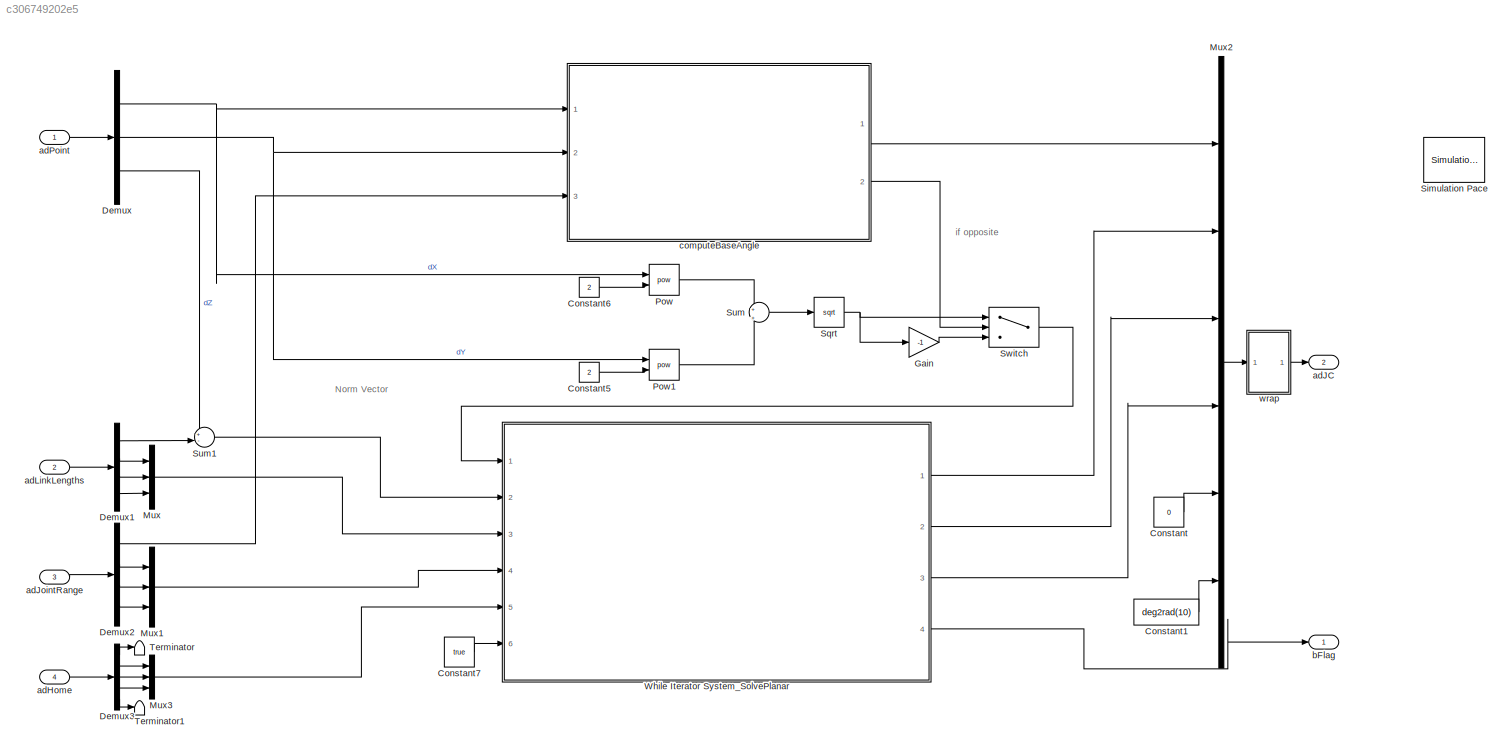
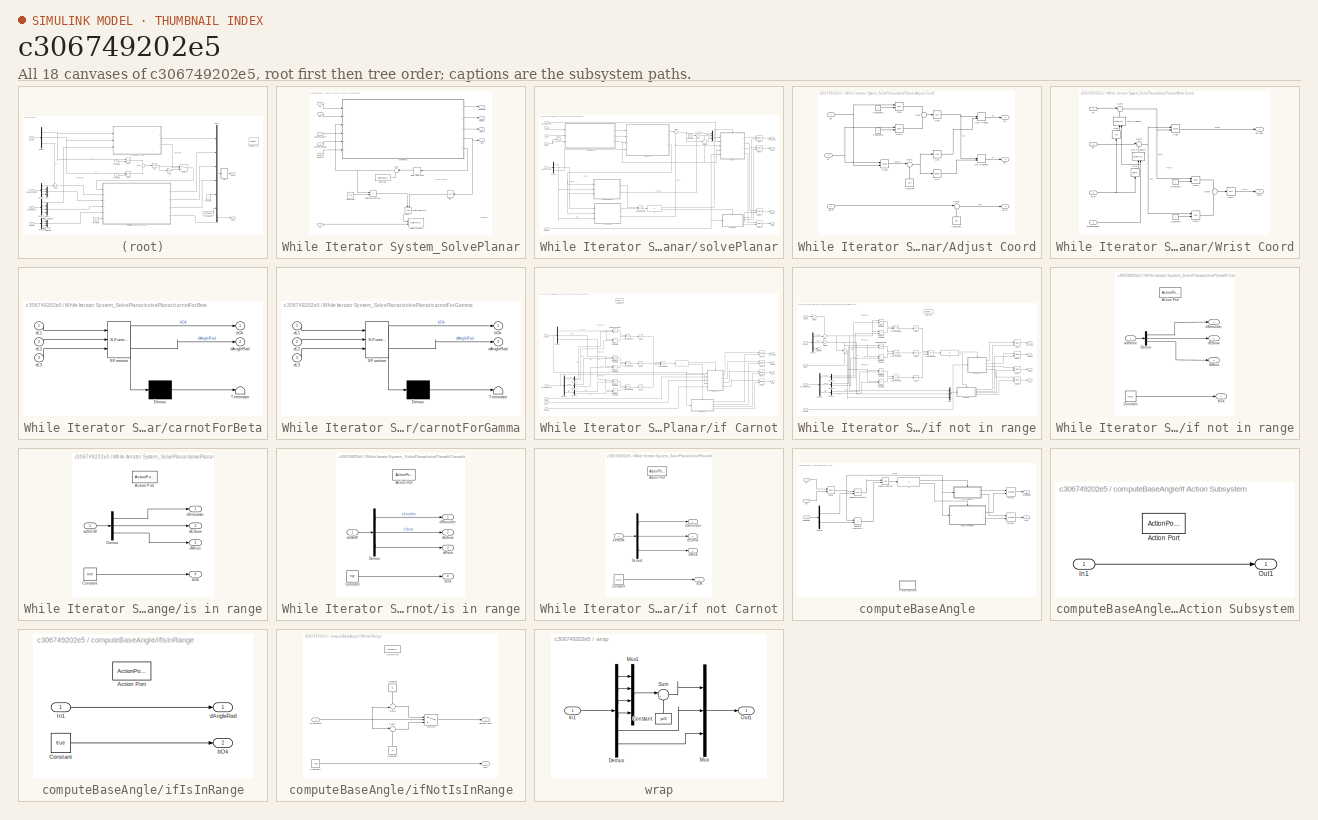
[diagram: thumbnail index - all 18 canvases of the model, root first then tree order]
MODEL slx_c306749202e5
KIND model
CONFIG AbsTol = auto
CONFIG EnableMultiTasking = on
CONFIG FixedStep = auto
CONFIG MaxStep = auto
CONFIG MinStep = auto
CONFIG RelTol = 1e-3
CONFIG SampleTimeConstraint = Unconstrained
CONFIG SolverName = FixedStepAuto
CONFIG StartTime = 0.0
CONFIG StopTime = 20
BLOCK [Constant] Constant
  Value = 0
BLOCK [Constant] Constant1
  Value = deg2rad(10)
BLOCK [Constant] Constant5
  Value = 2
BLOCK [Constant] Constant6
  Value = 2
BLOCK [Constant] Constant7
  Value = true
BLOCK [Demux] Demux
  Outputs = 3
  Ports = [1, 3]
BLOCK [Demux] Demux1
  Ports = [1, 4]
BLOCK [Demux] Demux2
  Ports = [1, 4]
BLOCK [Demux] Demux3
  Outputs = 5
  Ports = [1, 5]
BLOCK [Gain] Gain
  Gain = -1
BLOCK [Mux] Mux
  DisplayOption = bar
  Inputs = 3
  Ports = [3, 1]
BLOCK [Mux] Mux1
  DisplayOption = bar
  Inputs = 3
  Ports = [3, 1]
BLOCK [Mux] Mux2
  DisplayOption = bar
  Inputs = 6
  Ports = [6, 1]
BLOCK [Mux] Mux3
  DisplayOption = bar
  Inputs = 3
  Ports = [3, 1]
BLOCK [Math] Pow
  Operator = pow
  Ports = [2, 1]
  RndMeth = Zero
BLOCK [Math] Pow1
  Operator = pow
  Ports = [2, 1]
  RndMeth = Zero
BLOCK [Reference] Simulation Pace  REF=aerolibanimutils/Simulation Pace
  AttributesFormatString = %<SleepMode>\n%<SimulationPace> sec/sec
  Commented = on
  Ports = []
  SourceBlock = aerolibanimutils/Simulation Pace
  SourceProductBaseCode = AE
  SourceType = Simulation Pace
BLOCK [Sqrt] Sqrt
BLOCK [Sum] Sum
  Inputs = +|+
  Ports = [2, 1]
BLOCK [Sum] Sum1
  Inputs = +-|
  Ports = [2, 1]
BLOCK [Switch] Switch
  Criteria = u2 > Threshold
  InputSameDT = off
  SaturateOnIntegerOverflow = off
BLOCK [Terminator] Terminator
BLOCK [Terminator] Terminator1
BLOCK [SubSystem] While Iterator System_SolvePlanar
  Ports = [6, 4]
  RequestExecContextInheritance = off
  TreatAsAtomicUnit = on
BLOCK [Constant] While Iterator System_SolvePlanar/Constant
  Value = deg2rad(1)
BLOCK [Constant] While Iterator System_SolvePlanar/Constant1
  Value = 2*pi
BLOCK [Delay] While Iterator System_SolvePlanar/Delay One Step
  DelayLength = 1
  InitialCondition = deg2rad(-360)
  InputPortMap = u0
  NameLocation = top
  Ports = [1, 1]
BLOCK [Inport] While Iterator System_SolvePlanar/IC
  Port = 6
BLOCK [Logic] While Iterator System_SolvePlanar/Logical Operator
  AllPortsSameDT = off
  NameLocation = left
  OutDataTypeStr = boolean
  Ports = [2, 1]
BLOCK [Logic] While Iterator System_SolvePlanar/NOT
  AllPortsSameDT = off
  IconShape = distinctive
  NameLocation = top
  Operator = NOT
  OutDataTypeStr = boolean
  Ports = [1, 1]
BLOCK [RelationalOperator] While Iterator System_SolvePlanar/Relational Operator
  InputSameDT = off
  Operator = <
  OutDataTypeStr = boolean
  Ports = [2, 1]
  RndMeth = Simplest
BLOCK [Sum] While Iterator System_SolvePlanar/Sum
  Inputs = |++
  NameLocation = top
  Ports = [2, 1]
BLOCK [WhileIterator] While Iterator System_SolvePlanar/While Iterator
  MaxIters = 720
  Ports = [2]
  ResetStates = reset
BLOCK [Inport] While Iterator System_SolvePlanar/adHome
  Port = 5
BLOCK [Inport] While Iterator System_SolvePlanar/adJointsRange
  Port = 4
BLOCK [Inport] While Iterator System_SolvePlanar/adLinksLength
  Port = 3
BLOCK [Outport] While Iterator System_SolvePlanar/bOk
  Port = 4
BLOCK [Outport] While Iterator System_SolvePlanar/dElbow
  Port = 2
BLOCK [Outport] While Iterator System_SolvePlanar/dPitch
  Port = 3
BLOCK [Outport] While Iterator System_SolvePlanar/dShoulder
BLOCK [Inport] While Iterator System_SolvePlanar/dX
BLOCK [Inport] While Iterator System_SolvePlanar/dY
  Port = 2
BLOCK [SubSystem] While Iterator System_SolvePlanar/solvePlanar
  Ports = [6, 5]
  RequestExecContextInheritance = off
BLOCK [SubSystem] While Iterator System_SolvePlanar/solvePlanar/Adjust Coord
  Ports = [3, 3]
  RequestExecContextInheritance = off
BLOCK [Trigonometry] While Iterator System_SolvePlanar/solvePlanar/Adjust Coord/Atan2
  Operator = atan2
  Ports = [2, 1]
BLOCK [Constant] While Iterator System_SolvePlanar/solvePlanar/Adjust Coord/Constant
  NameLocation = right
  Value = pi/2
BLOCK [Constant] While Iterator System_SolvePlanar/solvePlanar/Adjust Coord/Constant1
  NameLocation = right
  Value = pi/2
BLOCK [Constant] While Iterator System_SolvePlanar/solvePlanar/Adjust Coord/Constant5
  Value = 2
BLOCK [Constant] While Iterator System_SolvePlanar/solvePlanar/Adjust Coord/Constant6
  Value = 2
BLOCK [Trigonometry] While Iterator System_SolvePlanar/solvePlanar/Adjust Coord/Cos
  Operator = cos
  Ports = [1, 1]
BLOCK [DotProduct] While Iterator System_SolvePlanar/solvePlanar/Adjust Coord/Dot Product
  OutDataTypeStr = Inherit: Inherit via internal rule
BLOCK [DotProduct] While Iterator System_SolvePlanar/solvePlanar/Adjust Coord/Dot Product1
  OutDataTypeStr = Inherit: Inherit via internal rule
BLOCK [Math] While Iterator System_SolvePlanar/solvePlanar/Adjust Coord/Pow
  Operator = pow
  Ports = [2, 1]
  RndMeth = Zero
BLOCK [Math] While Iterator System_SolvePlanar/solvePlanar/Adjust Coord/Pow1
  Operator = pow
  Ports = [2, 1]
  RndMeth = Zero
BLOCK [Trigonometry] While Iterator System_SolvePlanar/solvePlanar/Adjust Coord/Sin
  Ports = [1, 1]
BLOCK [Sqrt] While Iterator System_SolvePlanar/solvePlanar/Adjust Coord/Sqrt
BLOCK [Sum] While Iterator System_SolvePlanar/solvePlanar/Adjust Coord/Sum
  Inputs = +|+
  Ports = [2, 1]
BLOCK [Sum] While Iterator System_SolvePlanar/solvePlanar/Adjust Coord/Sum1
  Inputs = |+-
  Ports = [2, 1]
BLOCK [Sum] While Iterator System_SolvePlanar/solvePlanar/Adjust Coord/Sum2
  Inputs = |+-
  Ports = [2, 1]
BLOCK [Inport] While Iterator System_SolvePlanar/solvePlanar/Adjust Coord/dPhi
  Port = 3
BLOCK [Outport] While Iterator System_SolvePlanar/solvePlanar/Adjust Coord/dPhi'
  Port = 3
BLOCK [Inport] While Iterator System_SolvePlanar/solvePlanar/Adjust Coord/dX
BLOCK [Outport] While Iterator System_SolvePlanar/solvePlanar/Adjust Coord/dX'
BLOCK [Inport] While Iterator System_SolvePlanar/solvePlanar/Adjust Coord/dY
  Port = 2
BLOCK [Outport] While Iterator System_SolvePlanar/solvePlanar/Adjust Coord/dY'
  Port = 2
BLOCK [Constant] While Iterator System_SolvePlanar/solvePlanar/Constant4
  Value = pi
BLOCK [Demux] While Iterator System_SolvePlanar/solvePlanar/Demux
  Outputs = 3
  Ports = [1, 3]
BLOCK [If] While Iterator System_SolvePlanar/solvePlanar/If1
  IfExpression = u1
  Ports = [1, 2]
BLOCK [Logic] While Iterator System_SolvePlanar/solvePlanar/Logical Operator
  AllPortsSameDT = off
  OutDataTypeStr = boolean
  Ports = [2, 1]
BLOCK [Merge] While Iterator System_SolvePlanar/solvePlanar/Merge
  Ports = [2, 1]
BLOCK [Merge] While Iterator System_SolvePlanar/solvePlanar/Merge1
  Ports = [2, 1]
BLOCK [Merge] While Iterator System_SolvePlanar/solvePlanar/Merge2
  Ports = [2, 1]
BLOCK [Merge] While Iterator System_SolvePlanar/solvePlanar/Merge3
  Ports = [2, 1]
BLOCK [Mux] While Iterator System_SolvePlanar/solvePlanar/Mux
  DisplayOption = bar
  Inputs = 3
  Ports = [3, 1]
BLOCK [Sum] While Iterator System_SolvePlanar/solvePlanar/Sum6
  Inputs = |+-
  Ports = [2, 1]
BLOCK [Sum] While Iterator System_SolvePlanar/solvePlanar/Sum7
  Inputs = |+-
  Ports = [2, 1]
BLOCK [Sum] While Iterator System_SolvePlanar/solvePlanar/Sum8
  Inputs = --+
  Ports = [3, 1]
BLOCK [SubSystem] While Iterator System_SolvePlanar/solvePlanar/Wrist Coord
  Ports = [4, 2]
  RequestExecContextInheritance = off
BLOCK [Trigonometry] While Iterator System_SolvePlanar/solvePlanar/Wrist Coord/Atan1
  Operator = atan2
  Ports = [2, 1]
BLOCK [Constant] While Iterator System_SolvePlanar/solvePlanar/Wrist Coord/Constant2
  Value = 2
BLOCK [Constant] While Iterator System_SolvePlanar/solvePlanar/Wrist Coord/Constant3
  Value = 2
BLOCK [Trigonometry] While Iterator System_SolvePlanar/solvePlanar/Wrist Coord/Cos1
  NameLocation = right
  Operator = cos
  Ports = [1, 1]
BLOCK [DotProduct] While Iterator System_SolvePlanar/solvePlanar/Wrist Coord/Dot Product2
  NameLocation = right
  OutDataTypeStr = Inherit: Inherit via internal rule
BLOCK [DotProduct] While Iterator System_SolvePlanar/solvePlanar/Wrist Coord/Dot Product3
  NameLocation = right
  OutDataTypeStr = Inherit: Inherit via internal rule
BLOCK [Math] While Iterator System_SolvePlanar/solvePlanar/Wrist Coord/Pow2
  Operator = pow
  Ports = [2, 1]
  RndMeth = Zero
BLOCK [Math] While Iterator System_SolvePlanar/solvePlanar/Wrist Coord/Pow3
  Operator = pow
  Ports = [2, 1]
  RndMeth = Zero
BLOCK [Trigonometry] While Iterator System_SolvePlanar/solvePlanar/Wrist Coord/Sin1
  NameLocation = right
  Ports = [1, 1]
BLOCK [Sqrt] While Iterator System_SolvePlanar/solvePlanar/Wrist Coord/Sqrt1
BLOCK [Sum] While Iterator System_SolvePlanar/solvePlanar/Wrist Coord/Sum3
  Inputs = |+-
  Ports = [2, 1]
BLOCK [Sum] While Iterator System_SolvePlanar/solvePlanar/Wrist Coord/Sum4
  Inputs = |+-
  Ports = [2, 1]
BLOCK [Sum] While Iterator System_SolvePlanar/solvePlanar/Wrist Coord/Sum5
  Inputs = +|+
  Ports = [2, 1]
BLOCK [Outport] While Iterator System_SolvePlanar/solvePlanar/Wrist Coord/dAlpha
BLOCK [Inport] While Iterator System_SolvePlanar/solvePlanar/Wrist Coord/dHandLength
  Port = 4
BLOCK [Inport] While Iterator System_SolvePlanar/solvePlanar/Wrist Coord/dPhi
  Port = 3
BLOCK [Outport] While Iterator System_SolvePlanar/solvePlanar/Wrist Coord/dRw
  Port = 2
BLOCK [Inport] While Iterator System_SolvePlanar/solvePlanar/Wrist Coord/dX
BLOCK [Inport] While Iterator System_SolvePlanar/solvePlanar/Wrist Coord/dY
  Port = 2
BLOCK [Inport] While Iterator System_SolvePlanar/solvePlanar/adHome
  Port = 6
BLOCK [Inport] While Iterator System_SolvePlanar/solvePlanar/adJointRange
  Port = 5
BLOCK [Inport] While Iterator System_SolvePlanar/solvePlanar/adLinkLength
  Port = 4
BLOCK [Outport] While Iterator System_SolvePlanar/solvePlanar/bOk
  Port = 4
BLOCK [SubSystem] While Iterator System_SolvePlanar/solvePlanar/carnotForBeta
  ErrorFcn = Stateflow.Translate.translate
  PermitHierarchicalResolution = ExplicitOnly
  Ports = [3, 2]
  RequestExecContextInheritance = off
  SFBlockType = MATLAB Function
  TreatAsAtomicUnit = on
BLOCK [Demux] While Iterator System_SolvePlanar/solvePlanar/carnotForBeta/ Demux 
  Outputs = 1
  Ports = [1, 1]
BLOCK [S-Function] While Iterator System_SolvePlanar/solvePlanar/carnotForBeta/ SFunction 
  EnableBusSupport = on
  FunctionName = sf_sfun
  PortCounts = [3 3]
  Ports = [3, 3]
  SFcnIsStateOwnerBlock = off
  SFunctionDeploymentMode = off
  Tag = Stateflow S-Function 4
BLOCK [Terminator] While Iterator System_SolvePlanar/solvePlanar/carnotForBeta/ Terminator 
BLOCK [Outport] While Iterator System_SolvePlanar/solvePlanar/carnotForBeta/bOk
BLOCK [Outport] While Iterator System_SolvePlanar/solvePlanar/carnotForBeta/dAngleRad
  Port = 2
BLOCK [Inport] While Iterator System_SolvePlanar/solvePlanar/carnotForBeta/dL1
BLOCK [Inport] While Iterator System_SolvePlanar/solvePlanar/carnotForBeta/dL2
  Port = 2
BLOCK [Inport] While Iterator System_SolvePlanar/solvePlanar/carnotForBeta/dL3
  Port = 3
BLOCK [SubSystem] While Iterator System_SolvePlanar/solvePlanar/carnotForGamma
  ErrorFcn = Stateflow.Translate.translate
  PermitHierarchicalResolution = ExplicitOnly
  Ports = [3, 2]
  RequestExecContextInheritance = off
  SFBlockType = MATLAB Function
  TreatAsAtomicUnit = on
BLOCK [Demux] While Iterator System_SolvePlanar/solvePlanar/carnotForGamma/ Demux 
  Outputs = 1
  Ports = [1, 1]
BLOCK [S-Function] While Iterator System_SolvePlanar/solvePlanar/carnotForGamma/ SFunction 
  EnableBusSupport = on
  FunctionName = sf_sfun
  PortCounts = [3 3]
  Ports = [3, 3]
  SFcnIsStateOwnerBlock = off
  SFunctionDeploymentMode = off
  Tag = Stateflow S-Function 3
BLOCK [Terminator] While Iterator System_SolvePlanar/solvePlanar/carnotForGamma/ Terminator 
BLOCK [Outport] While Iterator System_SolvePlanar/solvePlanar/carnotForGamma/bOk
BLOCK [Outport] While Iterator System_SolvePlanar/solvePlanar/carnotForGamma/dAngleRad
  Port = 2
BLOCK [Inport] While Iterator System_SolvePlanar/solvePlanar/carnotForGamma/dL1
BLOCK [Inport] While Iterator System_SolvePlanar/solvePlanar/carnotForGamma/dL2
  Port = 2
BLOCK [Inport] While Iterator System_SolvePlanar/solvePlanar/carnotForGamma/dL3
  Port = 3
BLOCK [Outport] While Iterator System_SolvePlanar/solvePlanar/dElbow
  Port = 2
BLOCK [Inport] While Iterator System_SolvePlanar/solvePlanar/dPhi
  Port = 3
BLOCK [Outport] While Iterator System_SolvePlanar/solvePlanar/dPhi_o
  Port = 5
BLOCK [Outport] While Iterator System_SolvePlanar/solvePlanar/dPitch
  Port = 3
BLOCK [Outport] While Iterator System_SolvePlanar/solvePlanar/dShoulder
BLOCK [Inport] While Iterator System_SolvePlanar/solvePlanar/dX
BLOCK [Inport] While Iterator System_SolvePlanar/solvePlanar/dY
  Port = 2
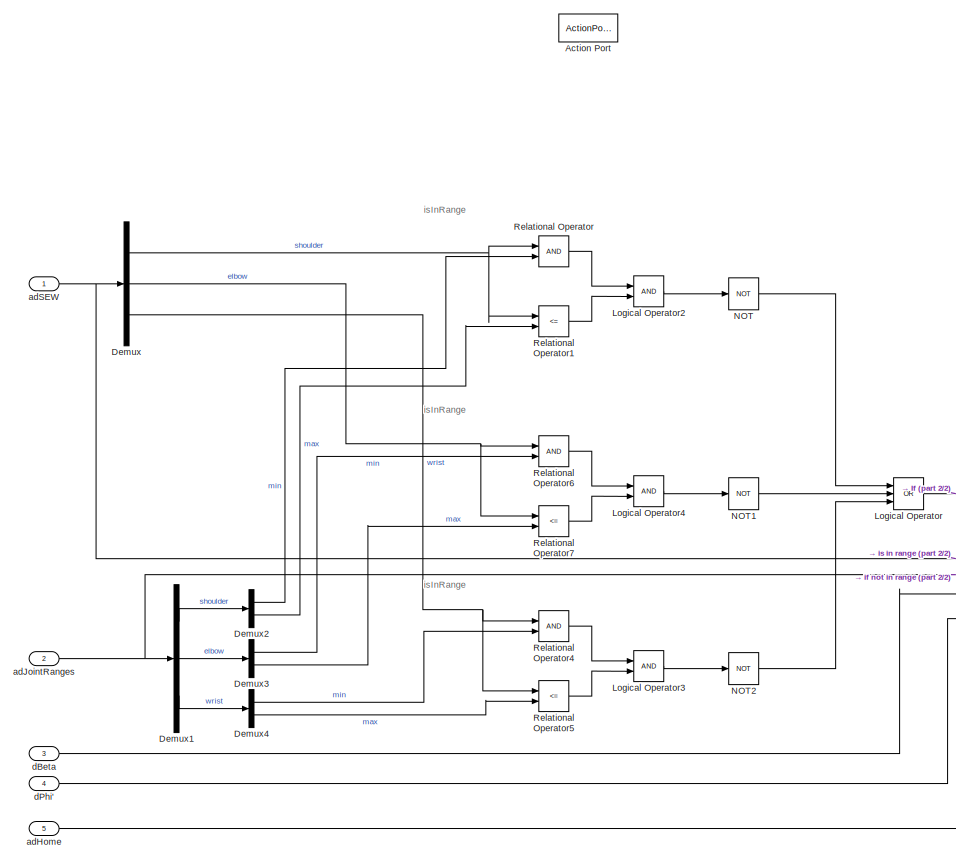
[diagram: While Iterator System_SolvePlanar/solvePlanar/if Carnot - part 1/2, left side, full height]
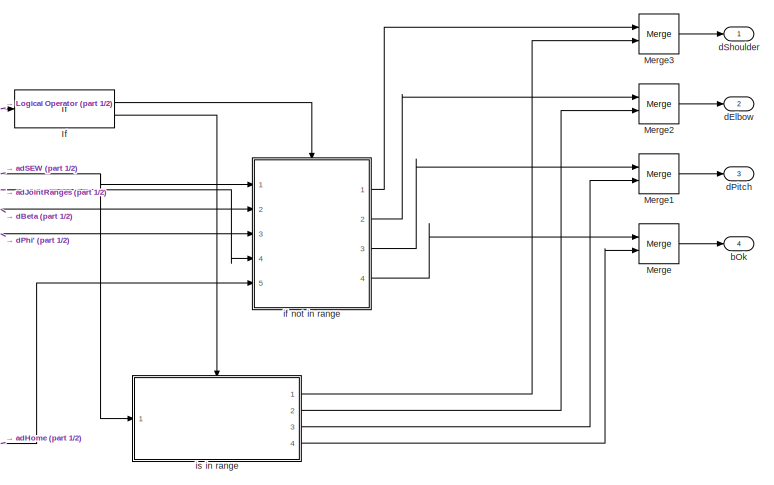
[diagram: While Iterator System_SolvePlanar/solvePlanar/if Carnot - part 2/2, bottom right region]
BLOCK [SubSystem] While Iterator System_SolvePlanar/solvePlanar/if Carnot
  Ports = [5, 4, 0, 0, 0, 0, 0, 1]
  RequestExecContextInheritance = off
  TreatAsAtomicUnit = on
BLOCK [ActionPort] While Iterator System_SolvePlanar/solvePlanar/if Carnot/Action Port
  ActionPortLabel = if(u1)
BLOCK [Demux] While Iterator System_SolvePlanar/solvePlanar/if Carnot/Demux
  Outputs = 3
  Ports = [1, 3]
BLOCK [Demux] While Iterator System_SolvePlanar/solvePlanar/if Carnot/Demux1
  Outputs = 3
  Ports = [1, 3]
BLOCK [Demux] While Iterator System_SolvePlanar/solvePlanar/if Carnot/Demux2
  Outputs = 2
  Ports = [1, 2]
BLOCK [Demux] While Iterator System_SolvePlanar/solvePlanar/if Carnot/Demux3
  Outputs = 2
  Ports = [1, 2]
BLOCK [Demux] While Iterator System_SolvePlanar/solvePlanar/if Carnot/Demux4
  Outputs = 2
  Ports = [1, 2]
BLOCK [If] While Iterator System_SolvePlanar/solvePlanar/if Carnot/If
  IfExpression = u1
  Ports = [1, 2]
BLOCK [Logic] While Iterator System_SolvePlanar/solvePlanar/if Carnot/Logical Operator
  AllPortsSameDT = off
  Inputs = 3
  Operator = OR
  OutDataTypeStr = boolean
  Ports = [3, 1]
BLOCK [Logic] While Iterator System_SolvePlanar/solvePlanar/if Carnot/Logical Operator2
  AllPortsSameDT = off
  OutDataTypeStr = boolean
  Ports = [2, 1]
BLOCK [Logic] While Iterator System_SolvePlanar/solvePlanar/if Carnot/Logical Operator3
  AllPortsSameDT = off
  OutDataTypeStr = boolean
  Ports = [2, 1]
BLOCK [Logic] While Iterator System_SolvePlanar/solvePlanar/if Carnot/Logical Operator4
  AllPortsSameDT = off
  OutDataTypeStr = boolean
  Ports = [2, 1]
BLOCK [Merge] While Iterator System_SolvePlanar/solvePlanar/if Carnot/Merge
  Ports = [2, 1]
BLOCK [Merge] While Iterator System_SolvePlanar/solvePlanar/if Carnot/Merge1
  Ports = [2, 1]
BLOCK [Merge] While Iterator System_SolvePlanar/solvePlanar/if Carnot/Merge2
  Ports = [2, 1]
BLOCK [Merge] While Iterator System_SolvePlanar/solvePlanar/if Carnot/Merge3
  Ports = [2, 1]
BLOCK [Logic] While Iterator System_SolvePlanar/solvePlanar/if Carnot/NOT
  AllPortsSameDT = off
  IconShape = distinctive
  Operator = NOT
  OutDataTypeStr = boolean
  Ports = [1, 1]
BLOCK [Logic] While Iterator System_SolvePlanar/solvePlanar/if Carnot/NOT1
  AllPortsSameDT = off
  IconShape = distinctive
  Operator = NOT
  OutDataTypeStr = boolean
  Ports = [1, 1]
BLOCK [Logic] While Iterator System_SolvePlanar/solvePlanar/if Carnot/NOT2
  AllPortsSameDT = off
  IconShape = distinctive
  Operator = NOT
  OutDataTypeStr = boolean
  Ports = [1, 1]
BLOCK [RelationalOperator] While Iterator System_SolvePlanar/solvePlanar/if Carnot/Relational Operator
  InputSameDT = off
  OutDataTypeStr = boolean
  Ports = [2, 1]
  RndMeth = Simplest
BLOCK [RelationalOperator] While Iterator System_SolvePlanar/solvePlanar/if Carnot/Relational Operator1
  InputSameDT = off
  Operator = <=
  OutDataTypeStr = boolean
  Ports = [2, 1]
  RndMeth = Simplest
BLOCK [RelationalOperator] While Iterator System_SolvePlanar/solvePlanar/if Carnot/Relational Operator4
  InputSameDT = off
  OutDataTypeStr = boolean
  Ports = [2, 1]
  RndMeth = Simplest
BLOCK [RelationalOperator] While Iterator System_SolvePlanar/solvePlanar/if Carnot/Relational Operator5
  InputSameDT = off
  Operator = <=
  OutDataTypeStr = boolean
  Ports = [2, 1]
  RndMeth = Simplest
BLOCK [RelationalOperator] While Iterator System_SolvePlanar/solvePlanar/if Carnot/Relational Operator6
  InputSameDT = off
  OutDataTypeStr = boolean
  Ports = [2, 1]
  RndMeth = Simplest
BLOCK [RelationalOperator] While Iterator System_SolvePlanar/solvePlanar/if Carnot/Relational Operator7
  InputSameDT = off
  Operator = <=
  OutDataTypeStr = boolean
  Ports = [2, 1]
  RndMeth = Simplest
BLOCK [Inport] While Iterator System_SolvePlanar/solvePlanar/if Carnot/adHome
  Port = 5
BLOCK [Inport] While Iterator System_SolvePlanar/solvePlanar/if Carnot/adJointRanges
  Port = 2
BLOCK [Inport] While Iterator System_SolvePlanar/solvePlanar/if Carnot/adSEW
BLOCK [Outport] While Iterator System_SolvePlanar/solvePlanar/if Carnot/bOk
  Port = 4
BLOCK [Inport] While Iterator System_SolvePlanar/solvePlanar/if Carnot/dBeta
  Port = 3
BLOCK [Outport] While Iterator System_SolvePlanar/solvePlanar/if Carnot/dElbow
  Port = 2
BLOCK [Inport] While Iterator System_SolvePlanar/solvePlanar/if Carnot/dPhi'
  Port = 4
BLOCK [Outport] While Iterator System_SolvePlanar/solvePlanar/if Carnot/dPitch
  Port = 3
BLOCK [Outport] While Iterator System_SolvePlanar/solvePlanar/if Carnot/dShoulder
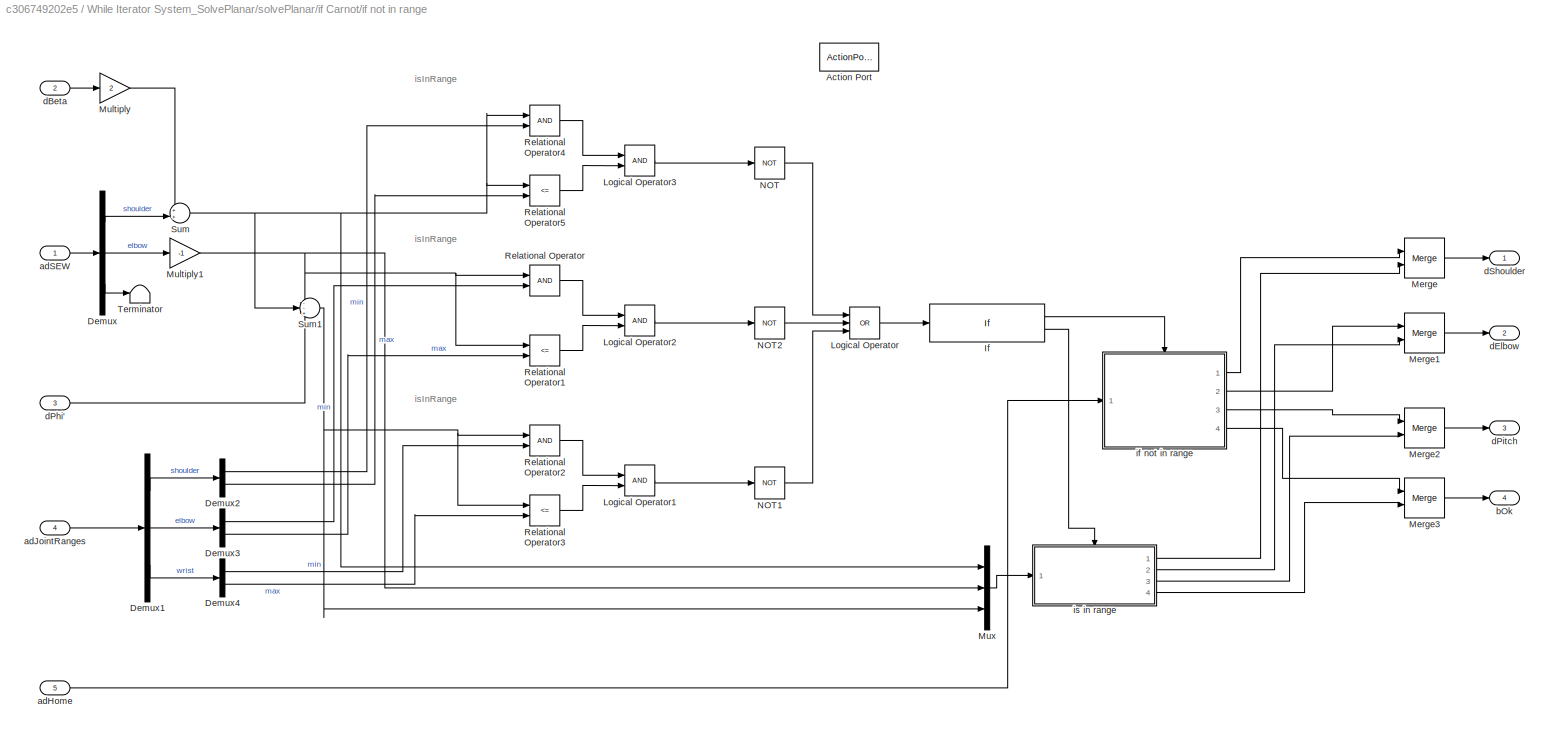
BLOCK [SubSystem] While Iterator System_SolvePlanar/solvePlanar/if Carnot/if not in range
  Ports = [5, 4, 0, 0, 0, 0, 0, 1]
  RequestExecContextInheritance = off
  TreatAsAtomicUnit = on
BLOCK [ActionPort] While Iterator System_SolvePlanar/solvePlanar/if Carnot/if not in range/Action Port
  ActionPortLabel = if(u1)
BLOCK [Demux] While Iterator System_SolvePlanar/solvePlanar/if Carnot/if not in range/Demux
  Outputs = 3
  Ports = [1, 3]
BLOCK [Demux] While Iterator System_SolvePlanar/solvePlanar/if Carnot/if not in range/Demux1
  Outputs = 3
  Ports = [1, 3]
BLOCK [Demux] While Iterator System_SolvePlanar/solvePlanar/if Carnot/if not in range/Demux2
  Outputs = 2
  Ports = [1, 2]
BLOCK [Demux] While Iterator System_SolvePlanar/solvePlanar/if Carnot/if not in range/Demux3
  Outputs = 2
  Ports = [1, 2]
BLOCK [Demux] While Iterator System_SolvePlanar/solvePlanar/if Carnot/if not in range/Demux4
  Outputs = 2
  Ports = [1, 2]
BLOCK [If] While Iterator System_SolvePlanar/solvePlanar/if Carnot/if not in range/If
  IfExpression = u1
  Ports = [1, 2]
BLOCK [Logic] While Iterator System_SolvePlanar/solvePlanar/if Carnot/if not in range/Logical Operator
  AllPortsSameDT = off
  Inputs = 3
  Operator = OR
  OutDataTypeStr = boolean
  Ports = [3, 1]
BLOCK [Logic] While Iterator System_SolvePlanar/solvePlanar/if Carnot/if not in range/Logical Operator1
  AllPortsSameDT = off
  OutDataTypeStr = boolean
  Ports = [2, 1]
BLOCK [Logic] While Iterator System_SolvePlanar/solvePlanar/if Carnot/if not in range/Logical Operator2
  AllPortsSameDT = off
  OutDataTypeStr = boolean
  Ports = [2, 1]
BLOCK [Logic] While Iterator System_SolvePlanar/solvePlanar/if Carnot/if not in range/Logical Operator3
  AllPortsSameDT = off
  OutDataTypeStr = boolean
  Ports = [2, 1]
BLOCK [Merge] While Iterator System_SolvePlanar/solvePlanar/if Carnot/if not in range/Merge
  Ports = [2, 1]
BLOCK [Merge] While Iterator System_SolvePlanar/solvePlanar/if Carnot/if not in range/Merge1
  Ports = [2, 1]
BLOCK [Merge] While Iterator System_SolvePlanar/solvePlanar/if Carnot/if not in range/Merge2
  Ports = [2, 1]
BLOCK [Merge] While Iterator System_SolvePlanar/solvePlanar/if Carnot/if not in range/Merge3
  Ports = [2, 1]
BLOCK [Gain] While Iterator System_SolvePlanar/solvePlanar/if Carnot/if not in range/Multiply
  Gain = 2
BLOCK [Gain] While Iterator System_SolvePlanar/solvePlanar/if Carnot/if not in range/Multiply1
  Gain = -1
BLOCK [Mux] While Iterator System_SolvePlanar/solvePlanar/if Carnot/if not in range/Mux
  DisplayOption = bar
  Inputs = 3
  Ports = [3, 1]
BLOCK [Logic] While Iterator System_SolvePlanar/solvePlanar/if Carnot/if not in range/NOT
  AllPortsSameDT = off
  IconShape = distinctive
  Operator = NOT
  OutDataTypeStr = boolean
  Ports = [1, 1]
BLOCK [Logic] While Iterator System_SolvePlanar/solvePlanar/if Carnot/if not in range/NOT1
  AllPortsSameDT = off
  IconShape = distinctive
  Operator = NOT
  OutDataTypeStr = boolean
  Ports = [1, 1]
BLOCK [Logic] While Iterator System_SolvePlanar/solvePlanar/if Carnot/if not in range/NOT2
  AllPortsSameDT = off
  IconShape = distinctive
  Operator = NOT
  OutDataTypeStr = boolean
  Ports = [1, 1]
BLOCK [RelationalOperator] While Iterator System_SolvePlanar/solvePlanar/if Carnot/if not in range/Relational Operator
  InputSameDT = off
  OutDataTypeStr = boolean
  Ports = [2, 1]
  RndMeth = Simplest
BLOCK [RelationalOperator] While Iterator System_SolvePlanar/solvePlanar/if Carnot/if not in range/Relational Operator1
  InputSameDT = off
  Operator = <=
  OutDataTypeStr = boolean
  Ports = [2, 1]
  RndMeth = Simplest
BLOCK [RelationalOperator] While Iterator System_SolvePlanar/solvePlanar/if Carnot/if not in range/Relational Operator2
  InputSameDT = off
  OutDataTypeStr = boolean
  Ports = [2, 1]
  RndMeth = Simplest
BLOCK [RelationalOperator] While Iterator System_SolvePlanar/solvePlanar/if Carnot/if not in range/Relational Operator3
  InputSameDT = off
  Operator = <=
  OutDataTypeStr = boolean
  Ports = [2, 1]
  RndMeth = Simplest
BLOCK [RelationalOperator] While Iterator System_SolvePlanar/solvePlanar/if Carnot/if not in range/Relational Operator4
  InputSameDT = off
  OutDataTypeStr = boolean
  Ports = [2, 1]
  RndMeth = Simplest
BLOCK [RelationalOperator] While Iterator System_SolvePlanar/solvePlanar/if Carnot/if not in range/Relational Operator5
  InputSameDT = off
  Operator = <=
  OutDataTypeStr = boolean
  Ports = [2, 1]
  RndMeth = Simplest
BLOCK [Sum] While Iterator System_SolvePlanar/solvePlanar/if Carnot/if not in range/Sum
  Inputs = ++|
  Ports = [2, 1]
BLOCK [Sum] While Iterator System_SolvePlanar/solvePlanar/if Carnot/if not in range/Sum1
  Inputs = --+
  Ports = [3, 1]
BLOCK [Terminator] While Iterator System_SolvePlanar/solvePlanar/if Carnot/if not in range/Terminator
BLOCK [Inport] While Iterator System_SolvePlanar/solvePlanar/if Carnot/if not in range/adHome
  Port = 5
BLOCK [Inport] While Iterator System_SolvePlanar/solvePlanar/if Carnot/if not in range/adJointRanges
  Port = 4
BLOCK [Inport] While Iterator System_SolvePlanar/solvePlanar/if Carnot/if not in range/adSEW
BLOCK [Outport] While Iterator System_SolvePlanar/solvePlanar/if Carnot/if not in range/bOk
  Port = 4
BLOCK [Inport] While Iterator System_SolvePlanar/solvePlanar/if Carnot/if not in range/dBeta
  Port = 2
BLOCK [Outport] While Iterator System_SolvePlanar/solvePlanar/if Carnot/if not in range/dElbow
  Port = 2
BLOCK [Inport] While Iterator System_SolvePlanar/solvePlanar/if Carnot/if not in range/dPhi'
  Port = 3
BLOCK [Outport] While Iterator System_SolvePlanar/solvePlanar/if Carnot/if not in range/dPitch
  Port = 3
BLOCK [Outport] While Iterator System_SolvePlanar/solvePlanar/if Carnot/if not in range/dShoulder
BLOCK [SubSystem] While Iterator System_SolvePlanar/solvePlanar/if Carnot/if not in range/if not in range
  Ports = [1, 4, 0, 0, 0, 0, 0, 1]
  RequestExecContextInheritance = off
  TreatAsAtomicUnit = on
BLOCK [ActionPort] While Iterator System_SolvePlanar/solvePlanar/if Carnot/if not in range/if not in range/Action Port
  ActionPortLabel = if(u1)
BLOCK [Constant] While Iterator System_SolvePlanar/solvePlanar/if Carnot/if not in range/if not in range/Constant
  Value = false
BLOCK [Demux] While Iterator System_SolvePlanar/solvePlanar/if Carnot/if not in range/if not in range/Demux
  Outputs = 3
  Ports = [1, 3]
BLOCK [Inport] While Iterator System_SolvePlanar/solvePlanar/if Carnot/if not in range/if not in range/adHome
BLOCK [Outport] While Iterator System_SolvePlanar/solvePlanar/if Carnot/if not in range/if not in range/bOk
  Port = 4
BLOCK [Outport] While Iterator System_SolvePlanar/solvePlanar/if Carnot/if not in range/if not in range/dElbow
  Port = 2
BLOCK [Outport] While Iterator System_SolvePlanar/solvePlanar/if Carnot/if not in range/if not in range/dShoulder
BLOCK [Outport] While Iterator System_SolvePlanar/solvePlanar/if Carnot/if not in range/if not in range/dWrist
  Port = 3
BLOCK [SubSystem] While Iterator System_SolvePlanar/solvePlanar/if Carnot/if not in range/is in range
  Ports = [1, 4, 0, 0, 0, 0, 0, 1]
  RequestExecContextInheritance = off
  TreatAsAtomicUnit = on
BLOCK [ActionPort] While Iterator System_SolvePlanar/solvePlanar/if Carnot/if not in range/is in range/Action Port
  ActionPortLabel = else
BLOCK [Constant] While Iterator System_SolvePlanar/solvePlanar/if Carnot/if not in range/is in range/Constant
  Value = true
BLOCK [Demux] While Iterator System_SolvePlanar/solvePlanar/if Carnot/if not in range/is in range/Demux
  Outputs = 3
  Ports = [1, 3]
BLOCK [Inport] While Iterator System_SolvePlanar/solvePlanar/if Carnot/if not in range/is in range/adSEW
BLOCK [Outport] While Iterator System_SolvePlanar/solvePlanar/if Carnot/if not in range/is in range/bOk
  Port = 4
BLOCK [Outport] While Iterator System_SolvePlanar/solvePlanar/if Carnot/if not in range/is in range/dElbow
  Port = 2
BLOCK [Outport] While Iterator System_SolvePlanar/solvePlanar/if Carnot/if not in range/is in range/dShoulder
BLOCK [Outport] While Iterator System_SolvePlanar/solvePlanar/if Carnot/if not in range/is in range/dWrist
  Port = 3
BLOCK [SubSystem] While Iterator System_SolvePlanar/solvePlanar/if Carnot/is in range
  Ports = [1, 4, 0, 0, 0, 0, 0, 1]
  RequestExecContextInheritance = off
  TreatAsAtomicUnit = on
BLOCK [ActionPort] While Iterator System_SolvePlanar/solvePlanar/if Carnot/is in range/Action Port
  ActionPortLabel = else
BLOCK [Constant] While Iterator System_SolvePlanar/solvePlanar/if Carnot/is in range/Constant
  Value = true
BLOCK [Demux] While Iterator System_SolvePlanar/solvePlanar/if Carnot/is in range/Demux
  Outputs = 3
  Ports = [1, 3]
BLOCK [Inport] While Iterator System_SolvePlanar/solvePlanar/if Carnot/is in range/adSEW
BLOCK [Outport] While Iterator System_SolvePlanar/solvePlanar/if Carnot/is in range/bOk
  Port = 4
BLOCK [Outport] While Iterator System_SolvePlanar/solvePlanar/if Carnot/is in range/dElbow
  Port = 2
BLOCK [Outport] While Iterator System_SolvePlanar/solvePlanar/if Carnot/is in range/dPitch
  Port = 3
BLOCK [Outport] While Iterator System_SolvePlanar/solvePlanar/if Carnot/is in range/dShoulder
BLOCK [SubSystem] While Iterator System_SolvePlanar/solvePlanar/if not Carnot
  Ports = [1, 4, 0, 0, 0, 0, 0, 1]
  RequestExecContextInheritance = off
  TreatAsAtomicUnit = on
BLOCK [ActionPort] While Iterator System_SolvePlanar/solvePlanar/if not Carnot/Action Port
  ActionPortLabel = else
BLOCK [Constant] While Iterator System_SolvePlanar/solvePlanar/if not Carnot/Constant
  Value = false
BLOCK [Demux] While Iterator System_SolvePlanar/solvePlanar/if not Carnot/Demux1
  Outputs = 3
  Ports = [1, 3]
BLOCK [Inport] While Iterator System_SolvePlanar/solvePlanar/if not Carnot/adHome
BLOCK [Outport] While Iterator System_SolvePlanar/solvePlanar/if not Carnot/bOK
  Port = 4
BLOCK [Outport] While Iterator System_SolvePlanar/solvePlanar/if not Carnot/dElbow
  Port = 2
BLOCK [Outport] While Iterator System_SolvePlanar/solvePlanar/if not Carnot/dShoulder
BLOCK [Outport] While Iterator System_SolvePlanar/solvePlanar/if not Carnot/dWrist
  Port = 3
BLOCK [Inport] adHome
  Port = 4
  PortDimensions = 5
BLOCK [Outport] adJC
  Port = 2
  PortDimensions = 6
BLOCK [Inport] adJointRange
  Port = 3
  PortDimensions = 8
BLOCK [Inport] adLinkLengths
  Port = 2
  PortDimensions = 4
BLOCK [Inport] adPoint
  PortDimensions = 3
BLOCK [Outport] bFlag
BLOCK [SubSystem] computeBaseAngle
  Ports = [3, 2]
  RequestExecContextInheritance = off
BLOCK [Trigonometry] computeBaseAngle/Atan2
  Operator = atan2
  Ports = [2, 1]
BLOCK [Demux] computeBaseAngle/Demux
  Outputs = 2
  Ports = [1, 2]
BLOCK [If] computeBaseAngle/If
  IfExpression = u1
  Ports = [1, 2]
BLOCK [SubSystem] computeBaseAngle/If Action Subsystem
  Ports = [1, 1, 0, 0, 0, 0, 0, 1]
  RequestExecContextInheritance = off
  TreatAsAtomicUnit = on
BLOCK [ActionPort] computeBaseAngle/If Action Subsystem/Action Port
BLOCK [Inport] computeBaseAngle/If Action Subsystem/In1
BLOCK [Outport] computeBaseAngle/If Action Subsystem/Out1
BLOCK [Logic] computeBaseAngle/Logical Operator
  AllPortsSameDT = off
  OutDataTypeStr = boolean
  Ports = [2, 1]
BLOCK [Merge] computeBaseAngle/Merge
  Ports = [2, 1]
BLOCK [Merge] computeBaseAngle/Merge1
  Ports = [2, 1]
BLOCK [RelationalOperator] computeBaseAngle/Relational Operator
  InputSameDT = off
  OutDataTypeStr = boolean
  Ports = [2, 1]
  RndMeth = Simplest
BLOCK [RelationalOperator] computeBaseAngle/Relational Operator1
  InputSameDT = off
  Operator = <=
  OutDataTypeStr = boolean
  Ports = [2, 1]
  RndMeth = Simplest
BLOCK [Inport] computeBaseAngle/adRange
  Port = 3
BLOCK [Outport] computeBaseAngle/bOk
  Port = 2
BLOCK [Outport] computeBaseAngle/dAngleRad
BLOCK [Inport] computeBaseAngle/dX
BLOCK [Inport] computeBaseAngle/dY
  Port = 2
BLOCK [SubSystem] computeBaseAngle/ifIsInRange
  Ports = [1, 2, 0, 0, 0, 0, 0, 1]
  RequestExecContextInheritance = off
  TreatAsAtomicUnit = on
BLOCK [ActionPort] computeBaseAngle/ifIsInRange/Action Port
  ActionPortLabel = if(u1)
BLOCK [Constant] computeBaseAngle/ifIsInRange/Constant
  Value = true
BLOCK [Inport] computeBaseAngle/ifIsInRange/In1
BLOCK [Outport] computeBaseAngle/ifIsInRange/bOk
  Port = 2
BLOCK [Outport] computeBaseAngle/ifIsInRange/dAngleRad
BLOCK [SubSystem] computeBaseAngle/ifNotIsInRange
  Ports = [1, 2, 0, 0, 0, 0, 0, 1]
  RequestExecContextInheritance = off
  TreatAsAtomicUnit = on
BLOCK [ActionPort] computeBaseAngle/ifNotIsInRange/Action Port
  ActionPortLabel = else
BLOCK [Constant] computeBaseAngle/ifNotIsInRange/Constant
  NameLocation = left
  Value = pi
BLOCK [Constant] computeBaseAngle/ifNotIsInRange/Constant1
  NameLocation = right
  Value = pi
BLOCK [Constant] computeBaseAngle/ifNotIsInRange/Constant2
  Value = false
BLOCK [Sum] computeBaseAngle/ifNotIsInRange/Sum1
  Inputs = |++
  Ports = [2, 1]
BLOCK [Sum] computeBaseAngle/ifNotIsInRange/Sum2
  Inputs = -+|
  Ports = [2, 1]
BLOCK [Switch] computeBaseAngle/ifNotIsInRange/Switch
  Criteria = u2 > Threshold
  InputSameDT = off
  SaturateOnIntegerOverflow = off
BLOCK [Outport] computeBaseAngle/ifNotIsInRange/bOk
  Port = 2
BLOCK [Inport] computeBaseAngle/ifNotIsInRange/dAngleRad
BLOCK [Outport] computeBaseAngle/ifNotIsInRange/dBaseAngle
BLOCK [SubSystem] wrap
  Ports = [1, 1]
  RequestExecContextInheritance = off
BLOCK [Constant] wrap/Constant
  Value = pi/2
BLOCK [Demux] wrap/Demux
  Outputs = 6
  Ports = [1, 6]
BLOCK [Inport] wrap/In1
BLOCK [Mux] wrap/Mux
  DisplayOption = bar
  Inputs = 3
  Ports = [3, 1]
BLOCK [Mux] wrap/Mux1
  DisplayOption = bar
  Ports = [4, 1]
BLOCK [Outport] wrap/Out1
BLOCK [Sum] wrap/Sum
  Inputs = |++
  Ports = [2, 1]
ANNOTATION (root): Norm Vector
ANNOTATION (root): if opposite
ANNOTATION While Iterator System_SolvePlanar: condition
ANNOTATION While Iterator System_SolvePlanar: phi_increment
ANNOTATION While Iterator System_SolvePlanar/solvePlanar: Carnot
ANNOTATION While Iterator System_SolvePlanar/solvePlanar/Wrist Coord: Norm
ANNOTATION While Iterator System_SolvePlanar/solvePlanar/if Carnot: isInRange
ANNOTATION While Iterator System_SolvePlanar/solvePlanar/if Carnot/if not in range: isInRange
LINE Constant1:1 -> Mux2:6
LINE Constant5:1 -> Pow1:2
LINE Constant6:1 -> Pow:2
LINE Constant7:1 -> While Iterator System_SolvePlanar:6
LINE Constant:1 -> Mux2:5
LINE Demux1:1 -> Sum1:2
LINE Demux1:2 -> Mux:1
LINE Demux1:3 -> Mux:2
LINE Demux1:4 -> Mux:3
LINE Demux2:1 -> computeBaseAngle:3
LINE Demux2:2 -> Mux1:1
LINE Demux2:3 -> Mux1:2
LINE Demux2:4 -> Mux1:3
LINE Demux3:1 -> Terminator:1
LINE Demux3:2 -> Mux3:1
LINE Demux3:3 -> Mux3:2
LINE Demux3:4 -> Mux3:3
LINE Demux3:5 -> Terminator1:1
NET Demux:1 -> Pow:1, computeBaseAngle:1
NET Demux:2 -> Pow1:1, computeBaseAngle:2
LINE Demux:3 -> Sum1:1
LINE Gain:1 -> Switch:3
LINE Mux1:1 -> While Iterator System_SolvePlanar:4
LINE Mux2:1 -> wrap:1
LINE Mux3:1 -> While Iterator System_SolvePlanar:5
LINE Mux:1 -> While Iterator System_SolvePlanar:3
LINE Pow1:1 -> Sum:2
LINE Pow:1 -> Sum:1
NET Sqrt:1 -> Gain:1, Switch:1
LINE Sum1:1 -> While Iterator System_SolvePlanar:2
LINE Sum:1 -> Sqrt:1
LINE Switch:1 -> While Iterator System_SolvePlanar:1
LINE While Iterator System_SolvePlanar/Constant1:1 -> While Iterator System_SolvePlanar/Relational Operator:2
LINE While Iterator System_SolvePlanar/Constant:1 -> While Iterator System_SolvePlanar/Sum:2
LINE While Iterator System_SolvePlanar/Delay One Step:1 -> While Iterator System_SolvePlanar/Sum:1
LINE While Iterator System_SolvePlanar/IC:1 -> While Iterator System_SolvePlanar/While Iterator:2
LINE While Iterator System_SolvePlanar/Logical Operator:1 -> While Iterator System_SolvePlanar/While Iterator:1
LINE While Iterator System_SolvePlanar/NOT:1 -> While Iterator System_SolvePlanar/Logical Operator:2
LINE While Iterator System_SolvePlanar/Relational Operator:1 -> While Iterator System_SolvePlanar/Logical Operator:1
NET While Iterator System_SolvePlanar/Sum:1 -> While Iterator System_SolvePlanar/Relational Operator:1, While Iterator System_SolvePlanar/solvePlanar:3
LINE While Iterator System_SolvePlanar/adHome:1 -> While Iterator System_SolvePlanar/solvePlanar:6
LINE While Iterator System_SolvePlanar/adJointsRange:1 -> While Iterator System_SolvePlanar/solvePlanar:5
LINE While Iterator System_SolvePlanar/adLinksLength:1 -> While Iterator System_SolvePlanar/solvePlanar:4
LINE While Iterator System_SolvePlanar/dX:1 -> While Iterator System_SolvePlanar/solvePlanar:1
LINE While Iterator System_SolvePlanar/dY:1 -> While Iterator System_SolvePlanar/solvePlanar:2
LINE While Iterator System_SolvePlanar/solvePlanar/Adjust Coord/Atan2:1 -> While Iterator System_SolvePlanar/solvePlanar/Adjust Coord/Sum1:1
LINE While Iterator System_SolvePlanar/solvePlanar/Adjust Coord/Constant1:1 -> While Iterator System_SolvePlanar/solvePlanar/Adjust Coord/Sum2:2
LINE While Iterator System_SolvePlanar/solvePlanar/Adjust Coord/Constant5:1 -> While Iterator System_SolvePlanar/solvePlanar/Adjust Coord/Pow1:2
LINE While Iterator System_SolvePlanar/solvePlanar/Adjust Coord/Constant6:1 -> While Iterator System_SolvePlanar/solvePlanar/Adjust Coord/Pow:2
LINE While Iterator System_SolvePlanar/solvePlanar/Adjust Coord/Constant:1 -> While Iterator System_SolvePlanar/solvePlanar/Adjust Coord/Sum1:2
LINE While Iterator System_SolvePlanar/solvePlanar/Adjust Coord/Cos:1 -> While Iterator System_SolvePlanar/solvePlanar/Adjust Coord/Dot Product:2
LINE While Iterator System_SolvePlanar/solvePlanar/Adjust Coord/Dot Product1:1 -> While Iterator System_SolvePlanar/solvePlanar/Adjust Coord/dY':1
LINE While Iterator System_SolvePlanar/solvePlanar/Adjust Coord/Dot Product:1 -> While Iterator System_SolvePlanar/solvePlanar/Adjust Coord/dX':1
LINE While Iterator System_SolvePlanar/solvePlanar/Adjust Coord/Pow1:1 -> While Iterator System_SolvePlanar/solvePlanar/Adjust Coord/Sum:2
LINE While Iterator System_SolvePlanar/solvePlanar/Adjust Coord/Pow:1 -> While Iterator System_SolvePlanar/solvePlanar/Adjust Coord/Sum:1
LINE While Iterator System_SolvePlanar/solvePlanar/Adjust Coord/Sin:1 -> While Iterator System_SolvePlanar/solvePlanar/Adjust Coord/Dot Product1:2
NET While Iterator System_SolvePlanar/solvePlanar/Adjust Coord/Sqrt:1 -> While Iterator System_SolvePlanar/solvePlanar/Adjust Coord/Dot Product1:1, While Iterator System_SolvePlanar/solvePlanar/Adjust Coord/Dot Product:1
NET While Iterator System_SolvePlanar/solvePlanar/Adjust Coord/Sum1:1 -> While Iterator System_SolvePlanar/solvePlanar/Adjust Coord/Cos:1, While Iterator System_SolvePlanar/solvePlanar/Adjust Coord/Sin:1
LINE While Iterator System_SolvePlanar/solvePlanar/Adjust Coord/Sum2:1 -> While Iterator System_SolvePlanar/solvePlanar/Adjust Coord/dPhi':1
LINE While Iterator System_SolvePlanar/solvePlanar/Adjust Coord/Sum:1 -> While Iterator System_SolvePlanar/solvePlanar/Adjust Coord/Sqrt:1
LINE While Iterator System_SolvePlanar/solvePlanar/Adjust Coord/dPhi:1 -> While Iterator System_SolvePlanar/solvePlanar/Adjust Coord/Sum2:1
NET While Iterator System_SolvePlanar/solvePlanar/Adjust Coord/dX:1 -> While Iterator System_SolvePlanar/solvePlanar/Adjust Coord/Atan2:2, While Iterator System_SolvePlanar/solvePlanar/Adjust Coord/Pow:1
NET While Iterator System_SolvePlanar/solvePlanar/Adjust Coord/dY:1 -> While Iterator System_SolvePlanar/solvePlanar/Adjust Coord/Atan2:1, While Iterator System_SolvePlanar/solvePlanar/Adjust Coord/Pow1:1
LINE While Iterator System_SolvePlanar/solvePlanar/Adjust Coord:1 -> While Iterator System_SolvePlanar/solvePlanar/Wrist Coord:1
LINE While Iterator System_SolvePlanar/solvePlanar/Adjust Coord:2 -> While Iterator System_SolvePlanar/solvePlanar/Wrist Coord:2
NET While Iterator System_SolvePlanar/solvePlanar/Adjust Coord:3 -> While Iterator System_SolvePlanar/solvePlanar/Sum8:3, While Iterator System_SolvePlanar/solvePlanar/Wrist Coord:3, While Iterator System_SolvePlanar/solvePlanar/if Carnot:4
LINE While Iterator System_SolvePlanar/solvePlanar/Constant4:1 -> While Iterator System_SolvePlanar/solvePlanar/Sum7:1
NET While Iterator System_SolvePlanar/solvePlanar/Demux:1 -> While Iterator System_SolvePlanar/solvePlanar/carnotForBeta:3, While Iterator System_SolvePlanar/solvePlanar/carnotForGamma:2
NET While Iterator System_SolvePlanar/solvePlanar/Demux:2 -> While Iterator System_SolvePlanar/solvePlanar/carnotForBeta:1, While Iterator System_SolvePlanar/solvePlanar/carnotForGamma:3
LINE While Iterator System_SolvePlanar/solvePlanar/Demux:3 -> While Iterator System_SolvePlanar/solvePlanar/Wrist Coord:4
LINE While Iterator System_SolvePlanar/solvePlanar/If1:1 -> While Iterator System_SolvePlanar/solvePlanar/if Carnot:ifaction
LINE While Iterator System_SolvePlanar/solvePlanar/If1:2 -> While Iterator System_SolvePlanar/solvePlanar/if not Carnot:ifaction
LINE While Iterator System_SolvePlanar/solvePlanar/Logical Operator:1 -> While Iterator System_SolvePlanar/solvePlanar/If1:1
LINE While Iterator System_SolvePlanar/solvePlanar/Merge1:1 -> While Iterator System_SolvePlanar/solvePlanar/dElbow:1
LINE While Iterator System_SolvePlanar/solvePlanar/Merge2:1 -> While Iterator System_SolvePlanar/solvePlanar/dPitch:1
LINE While Iterator System_SolvePlanar/solvePlanar/Merge3:1 -> While Iterator System_SolvePlanar/solvePlanar/bOk:1
LINE While Iterator System_SolvePlanar/solvePlanar/Merge:1 -> While Iterator System_SolvePlanar/solvePlanar/dShoulder:1
LINE While Iterator System_SolvePlanar/solvePlanar/Mux:1 -> While Iterator System_SolvePlanar/solvePlanar/if Carnot:1
NET While Iterator System_SolvePlanar/solvePlanar/Sum6:1 -> While Iterator System_SolvePlanar/solvePlanar/Mux:1, While Iterator System_SolvePlanar/solvePlanar/Sum8:2
NET While Iterator System_SolvePlanar/solvePlanar/Sum7:1 -> While Iterator System_SolvePlanar/solvePlanar/Mux:2, While Iterator System_SolvePlanar/solvePlanar/Sum8:1
LINE While Iterator System_SolvePlanar/solvePlanar/Sum8:1 -> While Iterator System_SolvePlanar/solvePlanar/Mux:3
LINE While Iterator System_SolvePlanar/solvePlanar/Wrist Coord/Atan1:1 -> While Iterator System_SolvePlanar/solvePlanar/Wrist Coord/dAlpha:1
LINE While Iterator System_SolvePlanar/solvePlanar/Wrist Coord/Constant2:1 -> While Iterator System_SolvePlanar/solvePlanar/Wrist Coord/Pow3:2
LINE While Iterator System_SolvePlanar/solvePlanar/Wrist Coord/Constant3:1 -> While Iterator System_SolvePlanar/solvePlanar/Wrist Coord/Pow2:2
LINE While Iterator System_SolvePlanar/solvePlanar/Wrist Coord/Cos1:1 -> While Iterator System_SolvePlanar/solvePlanar/Wrist Coord/Dot Product2:1
LINE While Iterator System_SolvePlanar/solvePlanar/Wrist Coord/Dot Product2:1 -> While Iterator System_SolvePlanar/solvePlanar/Wrist Coord/Sum4:2
LINE While Iterator System_SolvePlanar/solvePlanar/Wrist Coord/Dot Product3:1 -> While Iterator System_SolvePlanar/solvePlanar/Wrist Coord/Sum3:2
LINE While Iterator System_SolvePlanar/solvePlanar/Wrist Coord/Pow2:1 -> While Iterator System_SolvePlanar/solvePlanar/Wrist Coord/Sum5:1
LINE While Iterator System_SolvePlanar/solvePlanar/Wrist Coord/Pow3:1 -> While Iterator System_SolvePlanar/solvePlanar/Wrist Coord/Sum5:2
LINE While Iterator System_SolvePlanar/solvePlanar/Wrist Coord/Sin1:1 -> While Iterator System_SolvePlanar/solvePlanar/Wrist Coord/Dot Product3:1
LINE While Iterator System_SolvePlanar/solvePlanar/Wrist Coord/Sqrt1:1 -> While Iterator System_SolvePlanar/solvePlanar/Wrist Coord/dRw:1
NET While Iterator System_SolvePlanar/solvePlanar/Wrist Coord/Sum3:1 -> While Iterator System_SolvePlanar/solvePlanar/Wrist Coord/Atan1:1, While Iterator System_SolvePlanar/solvePlanar/Wrist Coord/Pow3:1
NET While Iterator System_SolvePlanar/solvePlanar/Wrist Coord/Sum4:1 -> While Iterator System_SolvePlanar/solvePlanar/Wrist Coord/Atan1:2, While Iterator System_SolvePlanar/solvePlanar/Wrist Coord/Pow2:1
LINE While Iterator System_SolvePlanar/solvePlanar/Wrist Coord/Sum5:1 -> While Iterator System_SolvePlanar/solvePlanar/Wrist Coord/Sqrt1:1
NET While Iterator System_SolvePlanar/solvePlanar/Wrist Coord/dHandLength:1 -> While Iterator System_SolvePlanar/solvePlanar/Wrist Coord/Dot Product2:2, While Iterator System_SolvePlanar/solvePlanar/Wrist Coord/Dot Product3:2
NET While Iterator System_SolvePlanar/solvePlanar/Wrist Coord/dPhi:1 -> While Iterator System_SolvePlanar/solvePlanar/Wrist Coord/Cos1:1, While Iterator System_SolvePlanar/solvePlanar/Wrist Coord/Sin1:1
LINE While Iterator System_SolvePlanar/solvePlanar/Wrist Coord/dX:1 -> While Iterator System_SolvePlanar/solvePlanar/Wrist Coord/Sum4:1
LINE While Iterator System_SolvePlanar/solvePlanar/Wrist Coord/dY:1 -> While Iterator System_SolvePlanar/solvePlanar/Wrist Coord/Sum3:1
LINE While Iterator System_SolvePlanar/solvePlanar/Wrist Coord:1 -> While Iterator System_SolvePlanar/solvePlanar/Sum6:1
NET While Iterator System_SolvePlanar/solvePlanar/Wrist Coord:2 -> While Iterator System_SolvePlanar/solvePlanar/carnotForBeta:2, While Iterator System_SolvePlanar/solvePlanar/carnotForGamma:1
NET While Iterator System_SolvePlanar/solvePlanar/adHome:1 -> While Iterator System_SolvePlanar/solvePlanar/if Carnot:5, While Iterator System_SolvePlanar/solvePlanar/if not Carnot:1
LINE While Iterator System_SolvePlanar/solvePlanar/adJointRange:1 -> While Iterator System_SolvePlanar/solvePlanar/if Carnot:2
LINE While Iterator System_SolvePlanar/solvePlanar/adLinkLength:1 -> While Iterator System_SolvePlanar/solvePlanar/Demux:1
LINE While Iterator System_SolvePlanar/solvePlanar/carnotForBeta:1 -> While Iterator System_SolvePlanar/solvePlanar/Logical Operator:2
NET While Iterator System_SolvePlanar/solvePlanar/carnotForBeta:2 -> While Iterator System_SolvePlanar/solvePlanar/Sum6:2, While Iterator System_SolvePlanar/solvePlanar/if Carnot:3
LINE While Iterator System_SolvePlanar/solvePlanar/carnotForGamma:1 -> While Iterator System_SolvePlanar/solvePlanar/Logical Operator:1
LINE While Iterator System_SolvePlanar/solvePlanar/carnotForGamma:2 -> While Iterator System_SolvePlanar/solvePlanar/Sum7:2
NET While Iterator System_SolvePlanar/solvePlanar/dPhi:1 -> While Iterator System_SolvePlanar/solvePlanar/Adjust Coord:3, While Iterator System_SolvePlanar/solvePlanar/dPhi_o:1
LINE While Iterator System_SolvePlanar/solvePlanar/dX:1 -> While Iterator System_SolvePlanar/solvePlanar/Adjust Coord:1
LINE While Iterator System_SolvePlanar/solvePlanar/dY:1 -> While Iterator System_SolvePlanar/solvePlanar/Adjust Coord:2
LINE While Iterator System_SolvePlanar/solvePlanar/if Carnot/Demux1:1 -> While Iterator System_SolvePlanar/solvePlanar/if Carnot/Demux2:1
LINE While Iterator System_SolvePlanar/solvePlanar/if Carnot/Demux1:2 -> While Iterator System_SolvePlanar/solvePlanar/if Carnot/Demux3:1
LINE While Iterator System_SolvePlanar/solvePlanar/if Carnot/Demux1:3 -> While Iterator System_SolvePlanar/solvePlanar/if Carnot/Demux4:1
LINE While Iterator System_SolvePlanar/solvePlanar/if Carnot/Demux2:1 -> While Iterator System_SolvePlanar/solvePlanar/if Carnot/Relational Operator:2
LINE While Iterator System_SolvePlanar/solvePlanar/if Carnot/Demux2:2 -> While Iterator System_SolvePlanar/solvePlanar/if Carnot/Relational Operator1:2
LINE While Iterator System_SolvePlanar/solvePlanar/if Carnot/Demux3:1 -> While Iterator System_SolvePlanar/solvePlanar/if Carnot/Relational Operator6:2
LINE While Iterator System_SolvePlanar/solvePlanar/if Carnot/Demux3:2 -> While Iterator System_SolvePlanar/solvePlanar/if Carnot/Relational Operator7:2
LINE While Iterator System_SolvePlanar/solvePlanar/if Carnot/Demux4:1 -> While Iterator System_SolvePlanar/solvePlanar/if Carnot/Relational Operator4:2
LINE While Iterator System_SolvePlanar/solvePlanar/if Carnot/Demux4:2 -> While Iterator System_SolvePlanar/solvePlanar/if Carnot/Relational Operator5:2
NET While Iterator System_SolvePlanar/solvePlanar/if Carnot/Demux:1 -> While Iterator System_SolvePlanar/solvePlanar/if Carnot/Relational Operator1:1, While Iterator System_SolvePlanar/solvePlanar/if Carnot/Relational Operator:1
NET While Iterator System_SolvePlanar/solvePlanar/if Carnot/Demux:2 -> While Iterator System_SolvePlanar/solvePlanar/if Carnot/Relational Operator6:1, While Iterator System_SolvePlanar/solvePlanar/if Carnot/Relational Operator7:1
NET While Iterator System_SolvePlanar/solvePlanar/if Carnot/Demux:3 -> While Iterator System_SolvePlanar/solvePlanar/if Carnot/Relational Operator4:1, While Iterator System_SolvePlanar/solvePlanar/if Carnot/Relational Operator5:1
LINE While Iterator System_SolvePlanar/solvePlanar/if Carnot/If:1 -> While Iterator System_SolvePlanar/solvePlanar/if Carnot/if not in range:ifaction
LINE While Iterator System_SolvePlanar/solvePlanar/if Carnot/If:2 -> While Iterator System_SolvePlanar/solvePlanar/if Carnot/is in range:ifaction
LINE While Iterator System_SolvePlanar/solvePlanar/if Carnot/Logical Operator2:1 -> While Iterator System_SolvePlanar/solvePlanar/if Carnot/NOT:1
LINE While Iterator System_SolvePlanar/solvePlanar/if Carnot/Logical Operator3:1 -> While Iterator System_SolvePlanar/solvePlanar/if Carnot/NOT2:1
LINE While Iterator System_SolvePlanar/solvePlanar/if Carnot/Logical Operator4:1 -> While Iterator System_SolvePlanar/solvePlanar/if Carnot/NOT1:1
LINE While Iterator System_SolvePlanar/solvePlanar/if Carnot/Logical Operator:1 -> While Iterator System_SolvePlanar/solvePlanar/if Carnot/If:1
LINE While Iterator System_SolvePlanar/solvePlanar/if Carnot/Merge1:1 -> While Iterator System_SolvePlanar/solvePlanar/if Carnot/dPitch:1
LINE While Iterator System_SolvePlanar/solvePlanar/if Carnot/Merge2:1 -> While Iterator System_SolvePlanar/solvePlanar/if Carnot/dElbow:1
LINE While Iterator System_SolvePlanar/solvePlanar/if Carnot/Merge3:1 -> While Iterator System_SolvePlanar/solvePlanar/if Carnot/dShoulder:1
LINE While Iterator System_SolvePlanar/solvePlanar/if Carnot/Merge:1 -> While Iterator System_SolvePlanar/solvePlanar/if Carnot/bOk:1
LINE While Iterator System_SolvePlanar/solvePlanar/if Carnot/NOT1:1 -> While Iterator System_SolvePlanar/solvePlanar/if Carnot/Logical Operator:2
LINE While Iterator System_SolvePlanar/solvePlanar/if Carnot/NOT2:1 -> While Iterator System_SolvePlanar/solvePlanar/if Carnot/Logical Operator:3
LINE While Iterator System_SolvePlanar/solvePlanar/if Carnot/NOT:1 -> While Iterator System_SolvePlanar/solvePlanar/if Carnot/Logical Operator:1
LINE While Iterator System_SolvePlanar/solvePlanar/if Carnot/Relational Operator1:1 -> While Iterator System_SolvePlanar/solvePlanar/if Carnot/Logical Operator2:2
LINE While Iterator System_SolvePlanar/solvePlanar/if Carnot/Relational Operator4:1 -> While Iterator System_SolvePlanar/solvePlanar/if Carnot/Logical Operator3:1
LINE While Iterator System_SolvePlanar/solvePlanar/if Carnot/Relational Operator5:1 -> While Iterator System_SolvePlanar/solvePlanar/if Carnot/Logical Operator3:2
LINE While Iterator System_SolvePlanar/solvePlanar/if Carnot/Relational Operator6:1 -> While Iterator System_SolvePlanar/solvePlanar/if Carnot/Logical Operator4:1
LINE While Iterator System_SolvePlanar/solvePlanar/if Carnot/Relational Operator7:1 -> While Iterator System_SolvePlanar/solvePlanar/if Carnot/Logical Operator4:2
LINE While Iterator System_SolvePlanar/solvePlanar/if Carnot/Relational Operator:1 -> While Iterator System_SolvePlanar/solvePlanar/if Carnot/Logical Operator2:1
LINE While Iterator System_SolvePlanar/solvePlanar/if Carnot/adHome:1 -> While Iterator System_SolvePlanar/solvePlanar/if Carnot/if not in range:5
NET While Iterator System_SolvePlanar/solvePlanar/if Carnot/adJointRanges:1 -> While Iterator System_SolvePlanar/solvePlanar/if Carnot/Demux1:1, While Iterator System_SolvePlanar/solvePlanar/if Carnot/if not in range:4
NET While Iterator System_SolvePlanar/solvePlanar/if Carnot/adSEW:1 -> While Iterator System_SolvePlanar/solvePlanar/if Carnot/Demux:1, While Iterator System_SolvePlanar/solvePlanar/if Carnot/if not in range:1, While Iterator System_SolvePlanar/solvePlanar/if Carnot/is in range:1
LINE While Iterator System_SolvePlanar/solvePlanar/if Carnot/dBeta:1 -> While Iterator System_SolvePlanar/solvePlanar/if Carnot/if not in range:2
LINE While Iterator System_SolvePlanar/solvePlanar/if Carnot/dPhi':1 -> While Iterator System_SolvePlanar/solvePlanar/if Carnot/if not in range:3
LINE While Iterator System_SolvePlanar/solvePlanar/if Carnot/if not in range/Demux1:1 -> While Iterator System_SolvePlanar/solvePlanar/if Carnot/if not in range/Demux2:1
LINE While Iterator System_SolvePlanar/solvePlanar/if Carnot/if not in range/Demux1:2 -> While Iterator System_SolvePlanar/solvePlanar/if Carnot/if not in range/Demux3:1
LINE While Iterator System_SolvePlanar/solvePlanar/if Carnot/if not in range/Demux1:3 -> While Iterator System_SolvePlanar/solvePlanar/if Carnot/if not in range/Demux4:1
LINE While Iterator System_SolvePlanar/solvePlanar/if Carnot/if not in range/Demux2:1 -> While Iterator System_SolvePlanar/solvePlanar/if Carnot/if not in range/Relational Operator4:2
LINE While Iterator System_SolvePlanar/solvePlanar/if Carnot/if not in range/Demux2:2 -> While Iterator System_SolvePlanar/solvePlanar/if Carnot/if not in range/Relational Operator5:2
LINE While Iterator System_SolvePlanar/solvePlanar/if Carnot/if not in range/Demux3:1 -> While Iterator System_SolvePlanar/solvePlanar/if Carnot/if not in range/Relational Operator:2
LINE While Iterator System_SolvePlanar/solvePlanar/if Carnot/if not in range/Demux3:2 -> While Iterator System_SolvePlanar/solvePlanar/if Carnot/if not in range/Relational Operator1:2
LINE While Iterator System_SolvePlanar/solvePlanar/if Carnot/if not in range/Demux4:1 -> While Iterator System_SolvePlanar/solvePlanar/if Carnot/if not in range/Relational Operator2:2
LINE While Iterator System_SolvePlanar/solvePlanar/if Carnot/if not in range/Demux4:2 -> While Iterator System_SolvePlanar/solvePlanar/if Carnot/if not in range/Relational Operator3:2
LINE While Iterator System_SolvePlanar/solvePlanar/if Carnot/if not in range/Demux:1 -> While Iterator System_SolvePlanar/solvePlanar/if Carnot/if not in range/Sum:2
LINE While Iterator System_SolvePlanar/solvePlanar/if Carnot/if not in range/Demux:2 -> While Iterator System_SolvePlanar/solvePlanar/if Carnot/if not in range/Multiply1:1
LINE While Iterator System_SolvePlanar/solvePlanar/if Carnot/if not in range/Demux:3 -> While Iterator System_SolvePlanar/solvePlanar/if Carnot/if not in range/Terminator:1
LINE While Iterator System_SolvePlanar/solvePlanar/if Carnot/if not in range/If:1 -> While Iterator System_SolvePlanar/solvePlanar/if Carnot/if not in range/if not in range:ifaction
LINE While Iterator System_SolvePlanar/solvePlanar/if Carnot/if not in range/If:2 -> While Iterator System_SolvePlanar/solvePlanar/if Carnot/if not in range/is in range:ifaction
LINE While Iterator System_SolvePlanar/solvePlanar/if Carnot/if not in range/Logical Operator1:1 -> While Iterator System_SolvePlanar/solvePlanar/if Carnot/if not in range/NOT1:1
LINE While Iterator System_SolvePlanar/solvePlanar/if Carnot/if not in range/Logical Operator2:1 -> While Iterator System_SolvePlanar/solvePlanar/if Carnot/if not in range/NOT2:1
LINE While Iterator System_SolvePlanar/solvePlanar/if Carnot/if not in range/Logical Operator3:1 -> While Iterator System_SolvePlanar/solvePlanar/if Carnot/if not in range/NOT:1
LINE While Iterator System_SolvePlanar/solvePlanar/if Carnot/if not in range/Logical Operator:1 -> While Iterator System_SolvePlanar/solvePlanar/if Carnot/if not in range/If:1
LINE While Iterator System_SolvePlanar/solvePlanar/if Carnot/if not in range/Merge1:1 -> While Iterator System_SolvePlanar/solvePlanar/if Carnot/if not in range/dElbow:1
LINE While Iterator System_SolvePlanar/solvePlanar/if Carnot/if not in range/Merge2:1 -> While Iterator System_SolvePlanar/solvePlanar/if Carnot/if not in range/dPitch:1
LINE While Iterator System_SolvePlanar/solvePlanar/if Carnot/if not in range/Merge3:1 -> While Iterator System_SolvePlanar/solvePlanar/if Carnot/if not in range/bOk:1
LINE While Iterator System_SolvePlanar/solvePlanar/if Carnot/if not in range/Merge:1 -> While Iterator System_SolvePlanar/solvePlanar/if Carnot/if not in range/dShoulder:1
NET While Iterator System_SolvePlanar/solvePlanar/if Carnot/if not in range/Multiply1:1 -> While Iterator System_SolvePlanar/solvePlanar/if Carnot/if not in range/Mux:2, While Iterator System_SolvePlanar/solvePlanar/if Carnot/if not in range/Relational Operator1:1, While Iterator System_SolvePlanar/solvePlanar/if Carnot/if not in range/Relational Operator:1, While Iterator System_SolvePlanar/solvePlanar/if Carnot/if not in range/Sum1:1
LINE While Iterator System_SolvePlanar/solvePlanar/if Carnot/if not in range/Multiply:1 -> While Iterator System_SolvePlanar/solvePlanar/if Carnot/if not in range/Sum:1
LINE While Iterator System_SolvePlanar/solvePlanar/if Carnot/if not in range/Mux:1 -> While Iterator System_SolvePlanar/solvePlanar/if Carnot/if not in range/is in range:1
LINE While Iterator System_SolvePlanar/solvePlanar/if Carnot/if not in range/NOT1:1 -> While Iterator System_SolvePlanar/solvePlanar/if Carnot/if not in range/Logical Operator:3
LINE While Iterator System_SolvePlanar/solvePlanar/if Carnot/if not in range/NOT2:1 -> While Iterator System_SolvePlanar/solvePlanar/if Carnot/if not in range/Logical Operator:2
LINE While Iterator System_SolvePlanar/solvePlanar/if Carnot/if not in range/NOT:1 -> While Iterator System_SolvePlanar/solvePlanar/if Carnot/if not in range/Logical Operator:1
LINE While Iterator System_SolvePlanar/solvePlanar/if Carnot/if not in range/Relational Operator1:1 -> While Iterator System_SolvePlanar/solvePlanar/if Carnot/if not in range/Logical Operator2:2
LINE While Iterator System_SolvePlanar/solvePlanar/if Carnot/if not in range/Relational Operator2:1 -> While Iterator System_SolvePlanar/solvePlanar/if Carnot/if not in range/Logical Operator1:1
LINE While Iterator System_SolvePlanar/solvePlanar/if Carnot/if not in range/Relational Operator3:1 -> While Iterator System_SolvePlanar/solvePlanar/if Carnot/if not in range/Logical Operator1:2
LINE While Iterator System_SolvePlanar/solvePlanar/if Carnot/if not in range/Relational Operator4:1 -> While Iterator System_SolvePlanar/solvePlanar/if Carnot/if not in range/Logical Operator3:1
LINE While Iterator System_SolvePlanar/solvePlanar/if Carnot/if not in range/Relational Operator5:1 -> While Iterator System_SolvePlanar/solvePlanar/if Carnot/if not in range/Logical Operator3:2
LINE While Iterator System_SolvePlanar/solvePlanar/if Carnot/if not in range/Relational Operator:1 -> While Iterator System_SolvePlanar/solvePlanar/if Carnot/if not in range/Logical Operator2:1
NET While Iterator System_SolvePlanar/solvePlanar/if Carnot/if not in range/Sum1:1 -> While Iterator System_SolvePlanar/solvePlanar/if Carnot/if not in range/Mux:3, While Iterator System_SolvePlanar/solvePlanar/if Carnot/if not in range/Relational Operator2:1, While Iterator System_SolvePlanar/solvePlanar/if Carnot/if not in range/Relational Operator3:1
NET While Iterator System_SolvePlanar/solvePlanar/if Carnot/if not in range/Sum:1 -> While Iterator System_SolvePlanar/solvePlanar/if Carnot/if not in range/Mux:1, While Iterator System_SolvePlanar/solvePlanar/if Carnot/if not in range/Relational Operator4:1, While Iterator System_SolvePlanar/solvePlanar/if Carnot/if not in range/Relational Operator5:1, While Iterator System_SolvePlanar/solvePlanar/if Carnot/if not in range/Sum1:2
LINE While Iterator System_SolvePlanar/solvePlanar/if Carnot/if not in range/adHome:1 -> While Iterator System_SolvePlanar/solvePlanar/if Carnot/if not in range/if not in range:1
LINE While Iterator System_SolvePlanar/solvePlanar/if Carnot/if not in range/adJointRanges:1 -> While Iterator System_SolvePlanar/solvePlanar/if Carnot/if not in range/Demux1:1
LINE While Iterator System_SolvePlanar/solvePlanar/if Carnot/if not in range/adSEW:1 -> While Iterator System_SolvePlanar/solvePlanar/if Carnot/if not in range/Demux:1
LINE While Iterator System_SolvePlanar/solvePlanar/if Carnot/if not in range/dBeta:1 -> While Iterator System_SolvePlanar/solvePlanar/if Carnot/if not in range/Multiply:1
LINE While Iterator System_SolvePlanar/solvePlanar/if Carnot/if not in range/dPhi':1 -> While Iterator System_SolvePlanar/solvePlanar/if Carnot/if not in range/Sum1:3
LINE While Iterator System_SolvePlanar/solvePlanar/if Carnot/if not in range/if not in range/Constant:1 -> While Iterator System_SolvePlanar/solvePlanar/if Carnot/if not in range/if not in range/bOk:1
LINE While Iterator System_SolvePlanar/solvePlanar/if Carnot/if not in range/if not in range/Demux:1 -> While Iterator System_SolvePlanar/solvePlanar/if Carnot/if not in range/if not in range/dShoulder:1
LINE While Iterator System_SolvePlanar/solvePlanar/if Carnot/if not in range/if not in range/Demux:2 -> While Iterator System_SolvePlanar/solvePlanar/if Carnot/if not in range/if not in range/dElbow:1
LINE While Iterator System_SolvePlanar/solvePlanar/if Carnot/if not in range/if not in range/Demux:3 -> While Iterator System_SolvePlanar/solvePlanar/if Carnot/if not in range/if not in range/dWrist:1
LINE While Iterator System_SolvePlanar/solvePlanar/if Carnot/if not in range/if not in range/adHome:1 -> While Iterator System_SolvePlanar/solvePlanar/if Carnot/if not in range/if not in range/Demux:1
LINE While Iterator System_SolvePlanar/solvePlanar/if Carnot/if not in range/if not in range:1 -> While Iterator System_SolvePlanar/solvePlanar/if Carnot/if not in range/Merge:1
LINE While Iterator System_SolvePlanar/solvePlanar/if Carnot/if not in range/if not in range:2 -> While Iterator System_SolvePlanar/solvePlanar/if Carnot/if not in range/Merge1:1
LINE While Iterator System_SolvePlanar/solvePlanar/if Carnot/if not in range/if not in range:3 -> While Iterator System_SolvePlanar/solvePlanar/if Carnot/if not in range/Merge2:1
LINE While Iterator System_SolvePlanar/solvePlanar/if Carnot/if not in range/if not in range:4 -> While Iterator System_SolvePlanar/solvePlanar/if Carnot/if not in range/Merge3:1
LINE While Iterator System_SolvePlanar/solvePlanar/if Carnot/if not in range/is in range/Constant:1 -> While Iterator System_SolvePlanar/solvePlanar/if Carnot/if not in range/is in range/bOk:1
LINE While Iterator System_SolvePlanar/solvePlanar/if Carnot/if not in range/is in range/Demux:1 -> While Iterator System_SolvePlanar/solvePlanar/if Carnot/if not in range/is in range/dShoulder:1
LINE While Iterator System_SolvePlanar/solvePlanar/if Carnot/if not in range/is in range/Demux:2 -> While Iterator System_SolvePlanar/solvePlanar/if Carnot/if not in range/is in range/dElbow:1
LINE While Iterator System_SolvePlanar/solvePlanar/if Carnot/if not in range/is in range/Demux:3 -> While Iterator System_SolvePlanar/solvePlanar/if Carnot/if not in range/is in range/dWrist:1
LINE While Iterator System_SolvePlanar/solvePlanar/if Carnot/if not in range/is in range/adSEW:1 -> While Iterator System_SolvePlanar/solvePlanar/if Carnot/if not in range/is in range/Demux:1
LINE While Iterator System_SolvePlanar/solvePlanar/if Carnot/if not in range/is in range:1 -> While Iterator System_SolvePlanar/solvePlanar/if Carnot/if not in range/Merge:2
LINE While Iterator System_SolvePlanar/solvePlanar/if Carnot/if not in range/is in range:2 -> While Iterator System_SolvePlanar/solvePlanar/if Carnot/if not in range/Merge1:2
LINE While Iterator System_SolvePlanar/solvePlanar/if Carnot/if not in range/is in range:3 -> While Iterator System_SolvePlanar/solvePlanar/if Carnot/if not in range/Merge2:2
LINE While Iterator System_SolvePlanar/solvePlanar/if Carnot/if not in range/is in range:4 -> While Iterator System_SolvePlanar/solvePlanar/if Carnot/if not in range/Merge3:2
LINE While Iterator System_SolvePlanar/solvePlanar/if Carnot/if not in range:1 -> While Iterator System_SolvePlanar/solvePlanar/if Carnot/Merge3:1
LINE While Iterator System_SolvePlanar/solvePlanar/if Carnot/if not in range:2 -> While Iterator System_SolvePlanar/solvePlanar/if Carnot/Merge2:1
LINE While Iterator System_SolvePlanar/solvePlanar/if Carnot/if not in range:3 -> While Iterator System_SolvePlanar/solvePlanar/if Carnot/Merge1:1
LINE While Iterator System_SolvePlanar/solvePlanar/if Carnot/if not in range:4 -> While Iterator System_SolvePlanar/solvePlanar/if Carnot/Merge:1
LINE While Iterator System_SolvePlanar/solvePlanar/if Carnot/is in range/Constant:1 -> While Iterator System_SolvePlanar/solvePlanar/if Carnot/is in range/bOk:1
LINE While Iterator System_SolvePlanar/solvePlanar/if Carnot/is in range/Demux:1 -> While Iterator System_SolvePlanar/solvePlanar/if Carnot/is in range/dShoulder:1
LINE While Iterator System_SolvePlanar/solvePlanar/if Carnot/is in range/Demux:2 -> While Iterator System_SolvePlanar/solvePlanar/if Carnot/is in range/dElbow:1
LINE While Iterator System_SolvePlanar/solvePlanar/if Carnot/is in range/Demux:3 -> While Iterator System_SolvePlanar/solvePlanar/if Carnot/is in range/dPitch:1
LINE While Iterator System_SolvePlanar/solvePlanar/if Carnot/is in range/adSEW:1 -> While Iterator System_SolvePlanar/solvePlanar/if Carnot/is in range/Demux:1
LINE While Iterator System_SolvePlanar/solvePlanar/if Carnot/is in range:1 -> While Iterator System_SolvePlanar/solvePlanar/if Carnot/Merge3:2
LINE While Iterator System_SolvePlanar/solvePlanar/if Carnot/is in range:2 -> While Iterator System_SolvePlanar/solvePlanar/if Carnot/Merge2:2
LINE While Iterator System_SolvePlanar/solvePlanar/if Carnot/is in range:3 -> While Iterator System_SolvePlanar/solvePlanar/if Carnot/Merge1:2
LINE While Iterator System_SolvePlanar/solvePlanar/if Carnot/is in range:4 -> While Iterator System_SolvePlanar/solvePlanar/if Carnot/Merge:2
LINE While Iterator System_SolvePlanar/solvePlanar/if Carnot:1 -> While Iterator System_SolvePlanar/solvePlanar/Merge:1
LINE While Iterator System_SolvePlanar/solvePlanar/if Carnot:2 -> While Iterator System_SolvePlanar/solvePlanar/Merge1:1
LINE While Iterator System_SolvePlanar/solvePlanar/if Carnot:3 -> While Iterator System_SolvePlanar/solvePlanar/Merge2:1
LINE While Iterator System_SolvePlanar/solvePlanar/if Carnot:4 -> While Iterator System_SolvePlanar/solvePlanar/Merge3:1
LINE While Iterator System_SolvePlanar/solvePlanar/if not Carnot/Constant:1 -> While Iterator System_SolvePlanar/solvePlanar/if not Carnot/bOK:1
LINE While Iterator System_SolvePlanar/solvePlanar/if not Carnot/Demux1:1 -> While Iterator System_SolvePlanar/solvePlanar/if not Carnot/dShoulder:1
LINE While Iterator System_SolvePlanar/solvePlanar/if not Carnot/Demux1:2 -> While Iterator System_SolvePlanar/solvePlanar/if not Carnot/dElbow:1
LINE While Iterator System_SolvePlanar/solvePlanar/if not Carnot/Demux1:3 -> While Iterator System_SolvePlanar/solvePlanar/if not Carnot/dWrist:1
LINE While Iterator System_SolvePlanar/solvePlanar/if not Carnot/adHome:1 -> While Iterator System_SolvePlanar/solvePlanar/if not Carnot/Demux1:1
LINE While Iterator System_SolvePlanar/solvePlanar/if not Carnot:1 -> While Iterator System_SolvePlanar/solvePlanar/Merge:2
LINE While Iterator System_SolvePlanar/solvePlanar/if not Carnot:2 -> While Iterator System_SolvePlanar/solvePlanar/Merge1:2
LINE While Iterator System_SolvePlanar/solvePlanar/if not Carnot:3 -> While Iterator System_SolvePlanar/solvePlanar/Merge2:2
LINE While Iterator System_SolvePlanar/solvePlanar/if not Carnot:4 -> While Iterator System_SolvePlanar/solvePlanar/Merge3:2
LINE While Iterator System_SolvePlanar/solvePlanar:1 -> While Iterator System_SolvePlanar/dShoulder:1
LINE While Iterator System_SolvePlanar/solvePlanar:2 -> While Iterator System_SolvePlanar/dElbow:1
LINE While Iterator System_SolvePlanar/solvePlanar:3 -> While Iterator System_SolvePlanar/dPitch:1
NET While Iterator System_SolvePlanar/solvePlanar:4 -> While Iterator System_SolvePlanar/NOT:1, While Iterator System_SolvePlanar/bOk:1
LINE While Iterator System_SolvePlanar/solvePlanar:5 -> While Iterator System_SolvePlanar/Delay One Step:1
LINE While Iterator System_SolvePlanar:1 -> Mux2:2
LINE While Iterator System_SolvePlanar:2 -> Mux2:3
LINE While Iterator System_SolvePlanar:3 -> Mux2:4
LINE While Iterator System_SolvePlanar:4 -> bFlag:1
LINE adHome:1 -> Demux3:1
LINE adJointRange:1 -> Demux2:1
LINE adLinkLengths:1 -> Demux1:1
LINE adPoint:1 -> Demux:1
NET computeBaseAngle/Atan2:1 -> computeBaseAngle/Relational Operator1:1, computeBaseAngle/Relational Operator:1, computeBaseAngle/ifIsInRange:1, computeBaseAngle/ifNotIsInRange:1
LINE computeBaseAngle/Demux:1 -> computeBaseAngle/Relational Operator:2
LINE computeBaseAngle/Demux:2 -> computeBaseAngle/Relational Operator1:2
LINE computeBaseAngle/If Action Subsystem/In1:1 -> computeBaseAngle/If Action Subsystem/Out1:1
LINE computeBaseAngle/If:1 -> computeBaseAngle/ifIsInRange:ifaction
LINE computeBaseAngle/If:2 -> computeBaseAngle/ifNotIsInRange:ifaction
LINE computeBaseAngle/Logical Operator:1 -> computeBaseAngle/If:1
LINE computeBaseAngle/Merge1:1 -> computeBaseAngle/bOk:1
LINE computeBaseAngle/Merge:1 -> computeBaseAngle/dAngleRad:1
LINE computeBaseAngle/Relational Operator1:1 -> computeBaseAngle/Logical Operator:2
LINE computeBaseAngle/Relational Operator:1 -> computeBaseAngle/Logical Operator:1
LINE computeBaseAngle/adRange:1 -> computeBaseAngle/Demux:1
LINE computeBaseAngle/dX:1 -> computeBaseAngle/Atan2:2
LINE computeBaseAngle/dY:1 -> computeBaseAngle/Atan2:1
LINE computeBaseAngle/ifIsInRange/Constant:1 -> computeBaseAngle/ifIsInRange/bOk:1
LINE computeBaseAngle/ifIsInRange/In1:1 -> computeBaseAngle/ifIsInRange/dAngleRad:1
LINE computeBaseAngle/ifIsInRange:1 -> computeBaseAngle/Merge:1
LINE computeBaseAngle/ifIsInRange:2 -> computeBaseAngle/Merge1:1
LINE computeBaseAngle/ifNotIsInRange/Constant1:1 -> computeBaseAngle/ifNotIsInRange/Sum1:2
LINE computeBaseAngle/ifNotIsInRange/Constant2:1 -> computeBaseAngle/ifNotIsInRange/bOk:1
LINE computeBaseAngle/ifNotIsInRange/Constant:1 -> computeBaseAngle/ifNotIsInRange/Sum2:1
LINE computeBaseAngle/ifNotIsInRange/Sum1:1 -> computeBaseAngle/ifNotIsInRange/Switch:3
LINE computeBaseAngle/ifNotIsInRange/Sum2:1 -> computeBaseAngle/ifNotIsInRange/Switch:1
LINE computeBaseAngle/ifNotIsInRange/Switch:1 -> computeBaseAngle/ifNotIsInRange/dBaseAngle:1
NET computeBaseAngle/ifNotIsInRange/dAngleRad:1 -> computeBaseAngle/ifNotIsInRange/Sum1:1, computeBaseAngle/ifNotIsInRange/Sum2:2, computeBaseAngle/ifNotIsInRange/Switch:2
LINE computeBaseAngle/ifNotIsInRange:1 -> computeBaseAngle/Merge:2
LINE computeBaseAngle/ifNotIsInRange:2 -> computeBaseAngle/Merge1:2
LINE computeBaseAngle:1 -> Mux2:1
LINE computeBaseAngle:2 -> Switch:2
LINE wrap/Constant:1 -> wrap/Sum:2
LINE wrap/Demux:1 -> wrap/Mux1:1
LINE wrap/Demux:2 -> wrap/Mux1:2
LINE wrap/Demux:3 -> wrap/Mux1:3
LINE wrap/Demux:4 -> wrap/Mux1:4
LINE wrap/Demux:5 -> wrap/Mux:2
LINE wrap/Demux:6 -> wrap/Mux:3
LINE wrap/In1:1 -> wrap/Demux:1
LINE wrap/Mux1:1 -> wrap/Sum:1
LINE wrap/Mux:1 -> wrap/Out1:1
LINE wrap/Sum:1 -> wrap/Mux:1
LINE wrap:1 -> adJC:1
note: NET lines group one-source signal fan-out (src -> all destinations, sorted); 1:1 wires keep LINE
CHART While Iterator System_SolvePlanar/solvePlanar/carnotForGamma states=1 transitions=1
  STATE_LABEL 'eML_blk_kernel()'
  STATE_LABEL 'SCRIPT:\nfunction [bOk, dAngleRad] = carnotRule(dL1, dL2, dL3)\n\nif (dL1 <= 0 || dL2 <= 0 || dL3 <= 0)\n    bOk         = false;\n    dAngleRad   = 0.0;\n    return;\nend\n\ndC23 = (dL2^2 + dL3^2 - dL1^2) / (2* dL2 * dL3);\n\nif (dC23 > 1 || dC23 < -1)\n    bOk         = false;\n    dAngleRad   = 0.0;\n    return;\nend\n\ndAngleRad = acos(dC23);\nbOk = true;\n\nend\n'
CHART While Iterator System_SolvePlanar/solvePlanar/carnotForBeta states=1 transitions=1
  STATE_LABEL 'eML_blk_kernel()'
  STATE_LABEL 'SCRIPT:\nfunction [bOk, dAngleRad] = carnotRule(dL1, dL2, dL3)\n\nif (dL1 <= 0 || dL2 <= 0 || dL3 <= 0)\n    bOk         = false;\n    dAngleRad   = 0.0;\n    return;\nend\n\ndC23 = (dL2^2 + dL3^2 - dL1^2) / (2* dL2 * dL3);\n\nif (dC23 > 1 || dC23 < -1)\n    bOk         = false;\n    dAngleRad   = 0.0;\n    return;\nend\n\ndAngleRad = acos(dC23);\nbOk = true;\n\nend\n'
CHART  states=0 transitions=0
CHART  states=0 transitions=0
